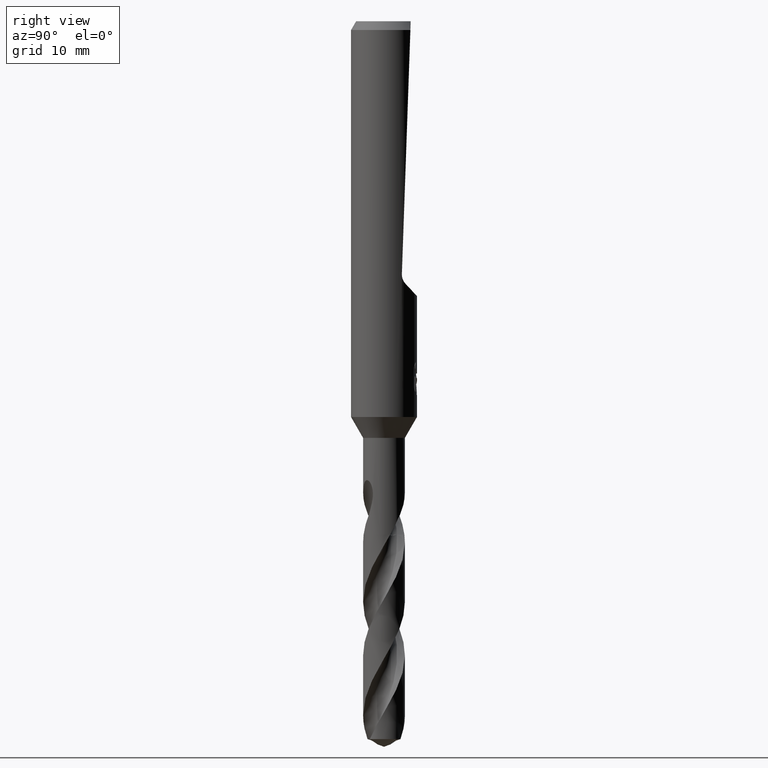
[diagram: clean part render]
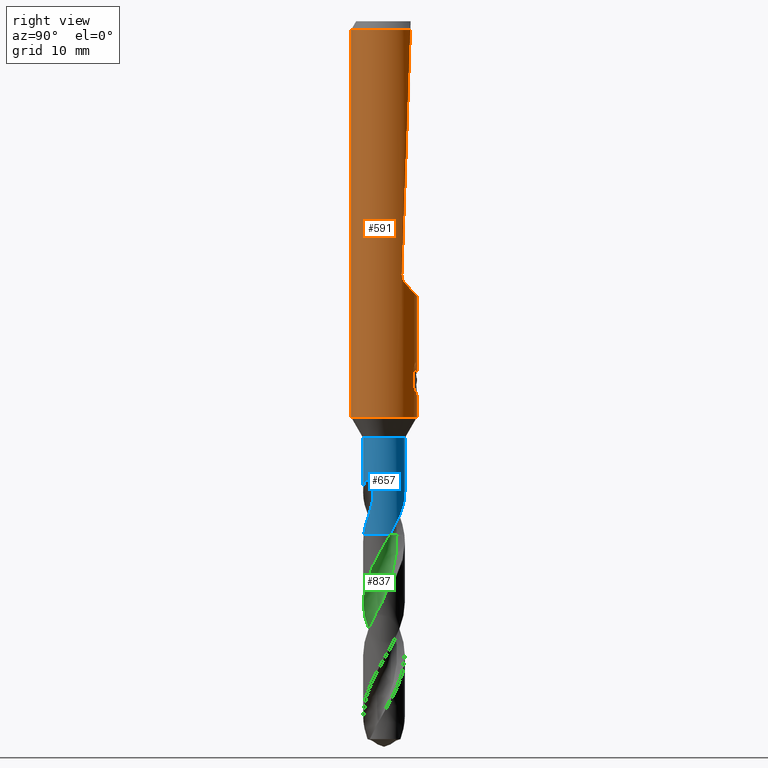
[diagram: same view with three faces highlighted in distinct colors, each labeled with its STEP entity id]
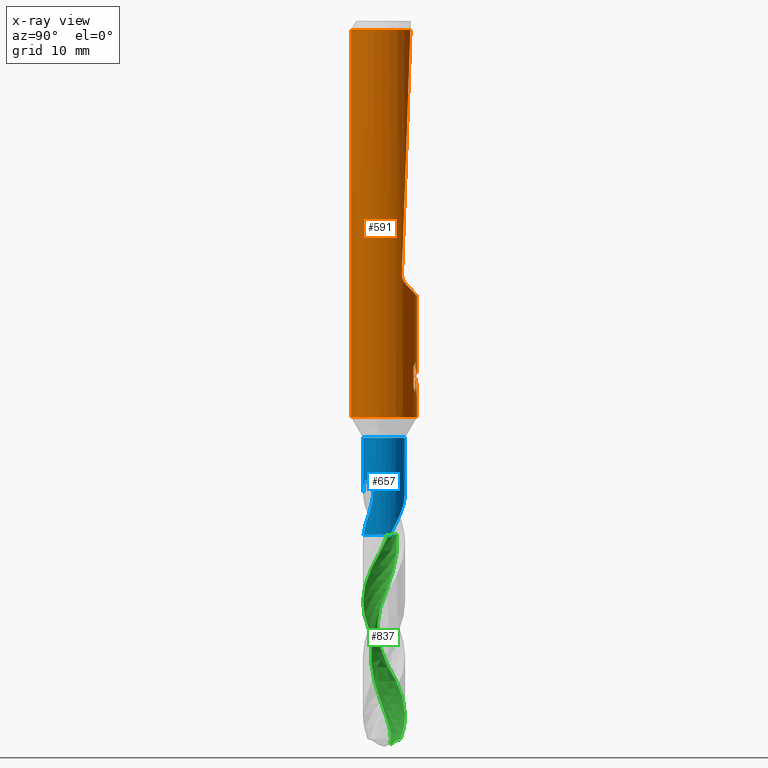
[diagram: x-ray of the same camera — body ghosted, the three highlighted faces saturated]
A machine part, right view with three faces highlighted in distinct colors.
The next image is the same camera in x-ray (body ghosted, the three faces saturated) — at least one of them is partly hidden behind the body in this view.
Their STEP definitions:

[orange] entity #591 — the highlighted cylindrical surface (edge-blend (fillet) strip) has radius 3 mm, axis along (-0, -0, 1).
#329=VERTEX_POINT('',#902);
#333=EDGE_CURVE('',#519,#759,#906,.T.);
#357=VERTEX_POINT('',#933);
#375=EDGE_CURVE('',#435,#743,#952,.T.);
#393=VERTEX_POINT('',#973);
#397=VERTEX_POINT('',#978);
#435=VERTEX_POINT('',#1021);
#445=EDGE_CURVE('',#357,#519,#1032,.T.);
#461=VERTEX_POINT('',#1048);
#467=VERTEX_POINT('',#1054);
#519=VERTEX_POINT('',#1110);
#541=VERTEX_POINT('',#1134);
#553=EDGE_CURVE('',#783,#357,#1146,.T.);
#591=ADVANCED_FACE('',(#1187),#1188,.T.);
#615=EDGE_CURVE('',#329,#541,#1213,.T.);
#663=EDGE_CURVE('',#467,#845,#1268,.T.);
#691=VERTEX_POINT('',#1297);
#701=VERTEX_POINT('',#1308);
#715=EDGE_CURVE('',#759,#701,#1324,.T.);
#717=EDGE_CURVE('',#541,#691,#1326,.T.);
#721=EDGE_CURVE('',#845,#435,#1330,.T.);
#729=EDGE_CURVE('',#397,#701,#1338,.T.);
#731=EDGE_CURVE('',#461,#743,#1340,.T.);
#737=EDGE_CURVE('',#329,#393,#1347,.T.);
#739=EDGE_CURVE('',#397,#467,#1349,.T.);
#743=VERTEX_POINT('',#1353);
#759=VERTEX_POINT('',#1372);
#783=VERTEX_POINT('',#1398);
#793=EDGE_CURVE('',#691,#783,#1408,.T.);
#833=EDGE_CURVE('',#393,#461,#1451,.T.);
#845=VERTEX_POINT('',#1465);
#902=CARTESIAN_POINT('',(-2.46407913303377E-016,3.0,-34.0310253601033));
#906=B_SPLINE_CURVE_WITH_KNOTS('',3,(#1809,#1810,#1811,#1812,#1813,#1814,#1815,#1816),.UNSPECIFIED.,.F.,.F.,(4,2,2,4),(0.629580638580865,1.25916127716173,1.57221094126725,1.88526060537277),.UNSPECIFIED.);
#933=CARTESIAN_POINT('',(1.33721006514658,2.68549236485056,-33.2901657003257));
#952=CIRCLE('',#1929,3.0);
#973=CARTESIAN_POINT('',(0.0,3.0,-36.0));
#978=CARTESIAN_POINT('',(-3.67381906146713E-016,3.0,-25.0009117563346));
#1021=CARTESIAN_POINT('',(1.79915003951659,2.40063723525806,-0.799999999999997));
#1032=LINE('',#2803,#2804);
#1048=CARTESIAN_POINT('',(3.67381906146713E-016,-3.0,-36.0));
#1054=CARTESIAN_POINT('',(2.2826599132014,1.94665449442457,-23.8713369953104));
#1110=CARTESIAN_POINT('',(1.33721006514658,2.68549236485057,-31.5150484364821));
#1134=CARTESIAN_POINT('',(0.29010312703583,2.98594041730307,-33.9998328990228));
#1146=B_SPLINE_CURVE_WITH_KNOTS('',3,(#4122,#4123,#4124,#4125,#4126,#4127,#4128,#4129),.UNSPECIFIED.,.F.,.F.,(4,2,2,4),(8.17446522132897,8.48751487521068,8.80056452909238,9.43014514523744),.UNSPECIFIED.);
#1187=FACE_OUTER_BOUND('',#4336,.T.);
#1188=CYLINDRICAL_SURFACE('',#4337,3.0);
#1213=B_SPLINE_CURVE_WITH_KNOTS('',3,(#4980,#4981,#4982,#4983,#4984,#4985,#4986,#4987,#4988,#4989,#4990,#4991,#4992,#4993,#4994,#4995),.UNSPECIFIED.,.F.,.F.,(4,2,2,2,2,2,2,4),(5.66023402257373,6.29060333517104,6.60504483258975,6.91948633000846,7.23392782742717,7.54836932484587,7.86141901111221,8.17446869737855),.UNSPECIFIED.);
#1268=B_SPLINE_CURVE_WITH_KNOTS('',3,(#5467,#5468,#5469,#5470,#5471,#5472,#5473,#5474,#5475,#5476,#5477,#5478),.UNSPECIFIED.,.F.,.F.,(4,2,2,2,2,4),(9.65639576015631,9.92366870863066,10.190941657105,10.4582146055794,10.7254875540537,10.9927605025281),.UNSPECIFIED.);
#1297=CARTESIAN_POINT('',(0.873560781758957,2.86999852971612,-32.3198931596091));
#1308=CARTESIAN_POINT('',(-1.20768269592175E-015,3.0,-32.0232688117743));
#1324=B_SPLINE_CURVE_WITH_KNOTS('',3,(#7050,#7051,#7052,#7053,#7054,#7055,#7056,#7057,#7058,#7059,#7060,#7061,#7062,#7063,#7064,#7065,#7066,#7067,#7068,#7069,#7070,#7071,#7072,#7073,#7074,#7075,#7076),.UNSPECIFIED.,.F.,.F.,(4,2,3,2,2,2,2,2,2,2,2,2,4),(-0.54422824842136,-0.27211412421068,0.0,0.272114124210678,0.544228248421357,0.817906359646673,1.09158447087199,1.36255924571499,1.63353402055798,1.90530456554772,2.17707511053746,2.4488456555272,2.72061620051693),.UNSPECIFIED.);
#1326=ELLIPSE('',#7079,9.14398372010932,3.0);
#1330=ELLIPSE('',#7084,85.9611250435315,3.0);
#1338=LINE('',#7163,#7164);
#1340=LINE('',#7167,#7168);
#1347=LINE('',#7177,#7178);
#1349=ELLIPSE('',#7181,4.39883755691887,3.0);
#1353=CARTESIAN_POINT('',(3.67381906146713E-016,-3.0,-0.799999999999997));
#1372=CARTESIAN_POINT('',(0.799431726384364,2.89152363207533,-31.000000276873));
#1398=CARTESIAN_POINT('',(0.873560781758956,2.86999852971612,-33.7587351791531));
#1408=LINE('',#7887,#7888);
#1451=CIRCLE('',#8119,3.0);
#1465=CARTESIAN_POINT('',(2.52177371746177,1.62500994394466,-23.0110595671924));
#1809=CARTESIAN_POINT('',(1.47371594887933,2.61307506628086,-31.7730763684241));
#1810=CARTESIAN_POINT('',(1.38997410067862,2.66030349611674,-31.5732652606136));
#1811=CARTESIAN_POINT('',(1.2654392594963,2.72440179761724,-31.3929794688919));
#1812=CARTESIAN_POINT('',(1.05168354029617,2.81066216411606,-31.1794481382038));
#1813=CARTESIAN_POINT('',(0.971352579549231,2.83988055521709,-31.1125077441098));
#1814=CARTESIAN_POINT('',(0.795685568183073,2.89401656493242,-30.9938021282019));
#1815=CARTESIAN_POINT('',(0.700343019183212,2.91889351702519,-30.9420279807093));
#1816=CARTESIAN_POINT('',(0.600330681290245,2.93932017192779,-30.9001776926585));
#1929=AXIS2_PLACEMENT_3D('',#8855,#8856,#8857);
#2803=CARTESIAN_POINT('',(1.33721006514658,2.68549236485056,-32.4026070684039));
#2804=VECTOR('',#8960,1.0);
#4122=CARTESIAN_POINT('',(0.600330703923335,2.93932016730517,-33.9050364278969));
#4123=CARTESIAN_POINT('',(0.700343038443484,2.91889351228921,-33.8631861412044));
#4124=CARTESIAN_POINT('',(0.795685584213131,2.8940165604303,-33.8114119954011));
#4125=CARTESIAN_POINT('',(0.971352589628262,2.83988055167306,-33.692706383359));
#4126=CARTESIAN_POINT('',(1.0516835476539,2.81066216129401,-33.6257659914415));
#4127=CARTESIAN_POINT('',(1.26543925920527,2.72440179743877,-33.4122346680481));
#4128=CARTESIAN_POINT('',(1.3899740959159,2.66030349847411,-33.2319488826214));
#4129=CARTESIAN_POINT('',(1.47371594109741,2.61307507066968,-33.0321377817991));
#4336=EDGE_LOOP('',(#9074,#9075,#9076,#9077,#9078,#9079,#9080,#9081,#9082,#9083,#9084,#9085,#9086,#9087,#9088));
#4337=AXIS2_PLACEMENT_3D('',#9089,#9090,#9091);
#4980=CARTESIAN_POINT('',(-1.53050642192579,2.58022287650581,-33.0319811255889));
#4981=CARTESIAN_POINT('',(-1.44691631248335,2.62980577312329,-33.2314887010961));
#4982=CARTESIAN_POINT('',(-1.32276760444366,2.69707077181617,-33.4113258593841));
#4983=CARTESIAN_POINT('',(-1.10973155101076,2.78826898930335,-33.6245951706909));
#4984=CARTESIAN_POINT('',(-1.02948996220254,2.81934349084513,-33.6916117853674));
#4985=CARTESIAN_POINT('',(-0.853932698223484,2.87738531454781,-33.8105216600777));
#4986=CARTESIAN_POINT('',(-0.758609991487907,2.90431263574779,-33.8624240602539));
#4987=CARTESIAN_POINT('',(-0.558469552260235,2.94934446690523,-33.9464055954533));
#4988=CARTESIAN_POINT('',(-0.453457041446381,2.96746268462387,-33.9785511641911));
#4989=CARTESIAN_POINT('',(-0.240810292537893,2.99223469602914,-34.0209924679526));
#4990=CARTESIAN_POINT('',(-0.133171317626829,2.99887501234033,-34.0312723335086));
#4991=CARTESIAN_POINT('',(0.0759830626177195,3.00085245803086,-34.0312723335086));
#4992=CARTESIAN_POINT('',(0.183273473896684,2.99629272230549,-34.0210815541729));
#4993=CARTESIAN_POINT('',(0.39543915272815,2.97573303917486,-33.9788816901513));
#4994=CARTESIAN_POINT('',(0.500318639064909,2.95974677710468,-33.9468871509919));
#4995=CARTESIAN_POINT('',(0.600330982089903,2.93932011049205,-33.9050368602192));
#5467=CARTESIAN_POINT('',(2.1993251643641,2.0403354678569,-23.961472197729));
#5468=CARTESIAN_POINT('',(2.25053184097059,1.98513859743127,-23.9138446323197));
#5469=CARTESIAN_POINT('',(2.29788287508865,1.92976722949031,-23.8571075060433));
#5470=CARTESIAN_POINT('',(2.37970549766852,1.82791383934016,-23.7268045582116));
#5471=CARTESIAN_POINT('',(2.41423408090567,1.78148417509052,-23.6532336111416));
#5472=CARTESIAN_POINT('',(2.46888600291622,1.7049378084188,-23.4943584779312));
#5473=CARTESIAN_POINT('',(2.48916425834033,1.67470764776135,-23.408819725842));
#5474=CARTESIAN_POINT('',(2.51582947593657,1.63437647323784,-23.2326537242643));
#5475=CARTESIAN_POINT('',(2.52224462272648,1.62427893636757,-23.1420299460602));
#5476=CARTESIAN_POINT('',(2.52224462272648,1.62427893636757,-22.9638479804106));
#5477=CARTESIAN_POINT('',(2.51582947593657,1.63437647323784,-22.8732242022064));
#5478=CARTESIAN_POINT('',(2.50249686713845,1.65454206049959,-22.7851412014176));
#7050=CARTESIAN_POINT('',(0.665621182276714,2.92522622060321,-30.8140957881762));
#7051=CARTESIAN_POINT('',(0.728850563417096,2.91083867849353,-30.877518087557));
#7052=CARTESIAN_POINT('',(0.783900459387161,2.89602337967411,-30.9578702196133));
#7053=CARTESIAN_POINT('',(0.857188692916628,2.87518328740958,-31.1345580124299));
#7054=CARTESIAN_POINT('',(0.875400981188567,2.86943777108584,-31.2309373045166));
#7055=CARTESIAN_POINT('',(0.875400981188567,2.86943777108584,-31.3216420125868));
#7056=CARTESIAN_POINT('',(0.875400981188567,2.86943777108584,-31.412346720657));
#7057=CARTESIAN_POINT('',(0.857188692916629,2.87518328740958,-31.5087260127437));
#7058=CARTESIAN_POINT('',(0.783900459387161,2.89602337967411,-31.6854138055602));
#7059=CARTESIAN_POINT('',(0.728850563417096,2.91083867849353,-31.7657659376165));
#7060=CARTESIAN_POINT('',(0.60202838769231,2.93969645569731,-31.8929750586276));
#7061=CARTESIAN_POINT('',(0.5214778595293,2.95568533572518,-31.9483797636259));
#7062=CARTESIAN_POINT('',(0.34429909105015,2.98152194310932,-32.0221641076746));
#7063=CARTESIAN_POINT('',(0.247628172090375,2.99115403786358,-32.0405166027747));
#7064=CARTESIAN_POINT('',(0.0663244946631877,3.00062654348629,-32.0405166027747));
#7065=CARTESIAN_POINT('',(-0.0299285908853379,3.00115720326599,-32.0224875186921));
#7066=CARTESIAN_POINT('',(-0.206881310600538,2.99416773126077,-31.949244373347));
#7067=CARTESIAN_POINT('',(-0.287593937381961,2.98687212067831,-31.8940404490632));
#7068=CARTESIAN_POINT('',(-0.415200117492864,2.97182576996222,-31.7666805419979));
#7069=CARTESIAN_POINT('',(-0.470604049431396,2.96309385107775,-31.6859121102136));
#7070=CARTESIAN_POINT('',(-0.544183869965539,2.95046729924835,-31.5086992019516));
#7071=CARTESIAN_POINT('',(-0.562348199187247,2.94682278104247,-31.41223219425));
#7072=CARTESIAN_POINT('',(-0.562348199187247,2.94682278104247,-31.2310518309235));
#7073=CARTESIAN_POINT('',(-0.54418386996554,2.95046729924835,-31.134584823222));
#7074=CARTESIAN_POINT('',(-0.4706040494314,2.96309385107775,-30.95737191496));
#7075=CARTESIAN_POINT('',(-0.415200117492863,2.97182576996222,-30.8766034831756));
#7076=CARTESIAN_POINT('',(-0.351303479704285,2.97935997575782,-30.812830162452));
#7079=AXIS2_PLACEMENT_3D('',#9202,#9203,#9204);
#7084=AXIS2_PLACEMENT_3D('',#9205,#9206,#9207);
#7163=CARTESIAN_POINT('',(-3.67381906146713E-016,3.0,-18.4));
#7164=VECTOR('',#9208,1.0);
#7167=CARTESIAN_POINT('',(3.67381906146713E-016,-3.0,-18.4));
#7168=VECTOR('',#9209,1.0);
#7177=CARTESIAN_POINT('',(-3.67381906146713E-016,3.0,-18.4));
#7178=VECTOR('',#9223,1.0);
#7181=AXIS2_PLACEMENT_3D('',#9224,#9225,#9226);
#7887=CARTESIAN_POINT('',(0.873560781758957,2.86999852971612,-33.0393141693811));
#7888=VECTOR('',#9282,1.0);
#8119=AXIS2_PLACEMENT_3D('',#9321,#9322,#9323);
#8855=CARTESIAN_POINT('',(0.0,0.0,-0.799999999999997));
#8856=DIRECTION('',(0.0,0.0,-1.0));
#8857=DIRECTION('',(0.0,1.0,0.0));
#8960=DIRECTION('',(-0.0,-0.0,1.0));
#9074=ORIENTED_EDGE('',*,*,#729,.F.);
#9075=ORIENTED_EDGE('',*,*,#739,.T.);
#9076=ORIENTED_EDGE('',*,*,#663,.T.);
#9077=ORIENTED_EDGE('',*,*,#721,.T.);
#9078=ORIENTED_EDGE('',*,*,#375,.T.);
#9079=ORIENTED_EDGE('',*,*,#731,.F.);
#9080=ORIENTED_EDGE('',*,*,#833,.F.);
#9081=ORIENTED_EDGE('',*,*,#737,.F.);
#9082=ORIENTED_EDGE('',*,*,#615,.T.);
#9083=ORIENTED_EDGE('',*,*,#717,.T.);
#9084=ORIENTED_EDGE('',*,*,#793,.T.);
#9085=ORIENTED_EDGE('',*,*,#553,.T.);
#9086=ORIENTED_EDGE('',*,*,#445,.T.);
#9087=ORIENTED_EDGE('',*,*,#333,.T.);
#9088=ORIENTED_EDGE('',*,*,#715,.T.);
#9089=CARTESIAN_POINT('',(0.0,0.0,-18.4));
#9090=DIRECTION('',(-0.0,-0.0,1.0));
#9091=DIRECTION('',(0.0,1.0,0.0));
#9202=CARTESIAN_POINT('',(0.0,0.0,-34.8351219173269));
#9203=DIRECTION('',(0.944648353914092,0.0,-0.328084573619969));
#9204=DIRECTION('',(0.328084573619969,-0.0,0.944648353914092));
#9205=CARTESIAN_POINT('',(0.0,0.0,-69.5452559092481));
#9206=DIRECTION('',(0.0,-0.999390827019096,0.0348994967025009));
#9207=DIRECTION('',(0.0,0.0348994967025009,0.999390827019096));
#9208=DIRECTION('',(0.0,0.0,-1.0));
#9209=DIRECTION('',(-0.0,-0.0,1.0));
#9223=DIRECTION('',(0.0,0.0,-1.0));
#9224=CARTESIAN_POINT('',(0.0,0.0,-21.7838056262606));
#9225=DIRECTION('',(0.0,-0.731353701619171,-0.681998360062499));
#9226=DIRECTION('',(0.0,0.681998360062499,-0.731353701619171));
#9282=DIRECTION('',(0.0,0.0,-1.0));
#9321=CARTESIAN_POINT('',(0.0,0.0,-36.0));
#9322=DIRECTION('',(0.0,0.0,-1.0));
#9323=DIRECTION('',(0.0,1.0,0.0));

[blue] entity #657 — the highlighted cylindrical surface (edge-blend (fillet) strip) has radius 1.9 mm, axis along (-0, -0, 1).
#373=VERTEX_POINT('',#950);
#439=VERTEX_POINT('',#1025);
#449=EDGE_CURVE('',#439,#769,#1036,.T.);
#451=EDGE_CURVE('',#813,#439,#1038,.T.);
#489=VERTEX_POINT('',#1078);
#493=VERTEX_POINT('',#1082);
#535=VERTEX_POINT('',#1127);
#547=EDGE_CURVE('',#373,#489,#1140,.T.);
#569=EDGE_CURVE('',#493,#601,#1164,.T.);
#601=VERTEX_POINT('',#1199);
#605=EDGE_CURVE('',#373,#535,#1203,.T.);
#651=EDGE_CURVE('',#853,#813,#1254,.T.);
#657=ADVANCED_FACE('',(#1260),#1261,.T.);
#671=EDGE_CURVE('',#853,#489,#1276,.T.);
#673=EDGE_CURVE('',#601,#535,#1278,.T.);
#765=EDGE_CURVE('',#493,#769,#1378,.T.);
#769=VERTEX_POINT('',#1382);
#813=VERTEX_POINT('',#1430);
#853=VERTEX_POINT('',#1474);
#950=CARTESIAN_POINT('',(0.0,1.9,-37.9052558883258));
#1025=CARTESIAN_POINT('',(1.32064695167188,-1.36597643795191,-44.8778));
#1036=B_SPLINE_CURVE_WITH_KNOTS('',3,(#2837,#2838,#2839,#2840,#2841,#2842,#2843,#2844),.UNSPECIFIED.,.F.,.F.,(4,2,2,4),(0.0,0.576250311160817,1.11259471561822,1.997420074431),.UNSPECIFIED.);
#1038=B_SPLINE_CURVE_WITH_KNOTS('',3,(#2847,#2848,#2849,#2850),.UNSPECIFIED.,.F.,.F.,(4,4),(0.0,1.09196780730607),.UNSPECIFIED.);
#1078=CARTESIAN_POINT('',(2.32675207226252E-016,-1.9,-37.9052558883258));
#1082=CARTESIAN_POINT('',(1.81578660910849,0.559391625055555,-46.7));
#1127=CARTESIAN_POINT('',(-5.67662347791993E-013,1.9,-42.8581361608634));
#1140=CIRCLE('',#3998,1.9);
#1164=B_SPLINE_CURVE_WITH_KNOTS('',3,(#4204,#4205,#4206,#4207,#4208,#4209,#4210,#4211),.UNSPECIFIED.,.F.,.F.,(4,2,2,4),(0.0,1.04883340318962,1.93251209663222,3.8840132338963),.UNSPECIFIED.);
#1199=CARTESIAN_POINT('',(1.21071203354284,1.46430064257124,-44.8778));
#1203=LINE('',#4964,#4965);
#1254=B_SPLINE_CURVE_WITH_KNOTS('',3,(#5402,#5403,#5404,#5405,#5406,#5407,#5408,#5409,#5410,#5411,#5412,#5413,#5414,#5415,#5416,#5417,#5418,#5419,#5420,#5421,#5422,#5423,#5424,#5425,#5426,#5427,#5428,#5429),.UNSPECIFIED.,.F.,.F.,(4,2,2,2,2,2,2,2,2,2,2,2,2,4),(0.0,0.930896725868807,1.43918709684327,1.89957042393617,2.43442537099132,3.07690815496931,3.63375908794895,3.88610448691807,4.07053822624275,4.24506649053845,4.46646600120742,4.79038246894408,5.25086781089674,5.77450983232069),.UNSPECIFIED.);
#1260=FACE_OUTER_BOUND('',#5457,.T.);
#1261=CYLINDRICAL_SURFACE('',#5458,1.9);
#1276=LINE('',#5522,#5523);
#1278=B_SPLINE_CURVE_WITH_KNOTS('',3,(#5526,#5527,#5528,#5529,#5530,#5531,#5532,#5533,#5534,#5535,#5536,#5537,#5538,#5539,#5540,#5541,#5542,#5543,#5544,#5545,#5546,#5547,#5548,#5549,#5550,#5551,#5552,#5553),.UNSPECIFIED.,.F.,.F.,(4,2,2,2,2,2,2,2,2,2,2,2,2,4),(0.0,0.930896725868812,1.43918709684323,1.8995704239361,2.43442537099121,3.07690815496917,3.63375908794876,3.88610448691797,4.07053822624273,4.2450664905385,4.46646600120753,4.79038246894432,5.25086781089762,5.77450983232257),.UNSPECIFIED.);
#1378=CIRCLE('',#7490,1.9);
#1382=CARTESIAN_POINT('',(0.404768178308106,-1.85638431415188,-46.7));
#1430=CARTESIAN_POINT('',(1.54592011029632,-1.10459540673561,-43.8373975703887));
#1474=CARTESIAN_POINT('',(5.59779764317155E-013,-1.9,-42.8581361608634));
#2837=CARTESIAN_POINT('',(1.32064695167187,-1.36597643795191,-44.8778));
#2838=CARTESIAN_POINT('',(1.25493842143284,-1.42950445186782,-45.0467456341314));
#2839=CARTESIAN_POINT('',(1.18503475801914,-1.48845189755056,-45.2085796782652));
#2840=CARTESIAN_POINT('',(1.02954118812307,-1.59954103631005,-45.5310189482785));
#2841=CARTESIAN_POINT('',(0.949746548014197,-1.64849777113106,-45.6880399521698));
#2842=CARTESIAN_POINT('',(0.718867094263392,-1.76614214257636,-46.1369260024279));
#2843=CARTESIAN_POINT('',(0.564209388473792,-1.82161956867648,-46.4186737246564));
#2844=CARTESIAN_POINT('',(0.404768178308115,-1.85638431415187,-46.7));
#2847=CARTESIAN_POINT('',(1.54592011034894,-1.10459540666197,-43.8373975704177));
#2848=CARTESIAN_POINT('',(1.48466567652095,-1.19032314057397,-44.1858037098529));
#2849=CARTESIAN_POINT('',(1.41083771128062,-1.27877862952934,-44.5362831998041));
#2850=CARTESIAN_POINT('',(1.32064695167187,-1.36597643795191,-44.8778));
#3998=AXIS2_PLACEMENT_3D('',#9033,#9034,#9035);
#4204=CARTESIAN_POINT('',(1.81578660910851,0.559391625055544,-46.7));
#4205=CARTESIAN_POINT('',(1.76425769163538,0.726654619599414,-46.397352008739));
#4206=CARTESIAN_POINT('',(1.6966254113087,0.866195850401933,-46.1465398238148));
#4207=CARTESIAN_POINT('',(1.56572391480033,1.08253292619974,-45.700038890581));
#4208=CARTESIAN_POINT('',(1.5142755115886,1.14871006699163,-45.5301510812298));
#4209=CARTESIAN_POINT('',(1.41265315152819,1.27550819809439,-45.2347977527772));
#4210=CARTESIAN_POINT('',(1.3254430201167,1.36943884846502,-45.0528753160362));
#4211=CARTESIAN_POINT('',(1.21071203354284,1.46430064257124,-44.8778));
#4964=CARTESIAN_POINT('',(-2.32675207226252E-016,1.9,-42.3026279441629));
#4965=VECTOR('',#9101,1.0);
#5402=CARTESIAN_POINT('',(-1.21071203354284,-1.46430064257124,-44.8778));
#5403=CARTESIAN_POINT('',(-1.08538087330129,-1.56792686485841,-44.6135290802612));
#5404=CARTESIAN_POINT('',(-0.941278308818904,-1.66004339814314,-44.36714351895));
#5405=CARTESIAN_POINT('',(-0.690006337884158,-1.77295146389738,-43.9555394209279));
#5406=CARTESIAN_POINT('',(-0.599587009473507,-1.80543079791102,-43.810723447385));
#5407=CARTESIAN_POINT('',(-0.424546600169902,-1.85397230287446,-43.5303971486895));
#5408=CARTESIAN_POINT('',(-0.340707086095919,-1.87112190445772,-43.3961934997419));
#5409=CARTESIAN_POINT('',(-0.159229834318965,-1.89587303984936,-43.1069488917868));
#5410=CARTESIAN_POINT('',(-0.0600762303288743,-1.90168393949035,-42.9496438769895));
#5411=CARTESIAN_POINT('',(0.160118456058105,-1.89705228779978,-42.6131166077026));
#5412=CARTESIAN_POINT('',(0.290671617676792,-1.88272651539859,-42.421628927856));
#5413=CARTESIAN_POINT('',(0.542426530797424,-1.82487212056621,-42.1058789172795));
#5414=CARTESIAN_POINT('',(0.681712501963189,-1.78079434988088,-41.951805206737));
#5415=CARTESIAN_POINT('',(0.892520378424017,-1.67890993681827,-41.8075307994537));
#5416=CARTESIAN_POINT('',(0.96229911801962,-1.64044626239386,-41.7718748476525));
#5417=CARTESIAN_POINT('',(1.08456752146185,-1.56124860066155,-41.7444846669143));
#5418=CARTESIAN_POINT('',(1.13471666348301,-1.5251813870785,-41.7439732162605));
#5419=CARTESIAN_POINT('',(1.22812215179518,-1.45089044992675,-41.767945289558));
#5420=CARTESIAN_POINT('',(1.26897305300971,-1.41500940735062,-41.7904212478785));
#5421=CARTESIAN_POINT('',(1.35210418437972,-1.33637889976646,-41.8607459460686));
#5422=CARTESIAN_POINT('',(1.39056440872162,-1.29563059277343,-41.9126680904723));
#5423=CARTESIAN_POINT('',(1.46934338524981,-1.20665367368141,-42.054847054154));
#5424=CARTESIAN_POINT('',(1.50699816538277,-1.15819937106817,-42.1603018334784));
#5425=CARTESIAN_POINT('',(1.57780658952891,-1.06090372748162,-42.4553525677251));
#5426=CARTESIAN_POINT('',(1.60340547576235,-1.01946044813557,-42.6654837368289));
#5427=CARTESIAN_POINT('',(1.61977323562939,-0.993279704172424,-43.1678680838826));
#5428=CARTESIAN_POINT('',(1.60817560749202,-1.01746664945085,-43.4833068082755));
#5429=CARTESIAN_POINT('',(1.54592011029632,-1.10459540673561,-43.8373975703887));
#5457=EDGE_LOOP('',(#9143,#9144,#9145,#9146,#9147,#9148,#9149,#9150,#9151));
#5458=AXIS2_PLACEMENT_3D('',#9152,#9153,#9154);
#5522=CARTESIAN_POINT('',(2.32675207226252E-016,-1.9,-42.3026279441629));
#5523=VECTOR('',#9171,1.0);
#5526=CARTESIAN_POINT('',(1.21071203354284,1.46430064257124,-44.8778));
#5527=CARTESIAN_POINT('',(1.08538087330129,1.56792686485841,-44.6135290802612));
#5528=CARTESIAN_POINT('',(0.941278308818906,1.66004339814314,-44.36714351895));
#5529=CARTESIAN_POINT('',(0.690006337884163,1.77295146389738,-43.9555394209279));
#5530=CARTESIAN_POINT('',(0.59958700947352,1.80543079791102,-43.810723447385));
#5531=CARTESIAN_POINT('',(0.424546600169888,1.85397230287446,-43.5303971486895));
#5532=CARTESIAN_POINT('',(0.340707086095889,1.87112190445773,-43.3961934997418));
#5533=CARTESIAN_POINT('',(0.159229834318997,1.89587303984936,-43.1069488917869));
#5534=CARTESIAN_POINT('',(0.0600762303288924,1.90168393949035,-42.9496438769896));
#5535=CARTESIAN_POINT('',(-0.160118456058132,1.89705228779978,-42.6131166077025));
#5536=CARTESIAN_POINT('',(-0.290671617676801,1.88272651539859,-42.421628927856));
#5537=CARTESIAN_POINT('',(-0.542426530797416,1.82487212056622,-42.1058789172795));
#5538=CARTESIAN_POINT('',(-0.681712501963187,1.78079434988088,-41.951805206737));
#5539=CARTESIAN_POINT('',(-0.892520378424043,1.67890993681826,-41.8075307994537));
#5540=CARTESIAN_POINT('',(-0.962299118019629,1.64044626239386,-41.7718748476525));
#5541=CARTESIAN_POINT('',(-1.08456752146185,1.56124860066155,-41.7444846669144));
#5542=CARTESIAN_POINT('',(-1.13471666348301,1.5251813870785,-41.7439732162605));
#5543=CARTESIAN_POINT('',(-1.22812215179518,1.45089044992675,-41.767945289558));
#5544=CARTESIAN_POINT('',(-1.26897305300971,1.41500940735062,-41.7904212478785));
#5545=CARTESIAN_POINT('',(-1.35210418437971,1.33637889976647,-41.8607459460686));
#5546=CARTESIAN_POINT('',(-1.3905644087216,1.29563059277345,-41.9126680904722));
#5547=CARTESIAN_POINT('',(-1.46934338524984,1.20665367368138,-42.0548470541541));
#5548=CARTESIAN_POINT('',(-1.50699816538279,1.15819937106815,-42.1603018334785));
#5549=CARTESIAN_POINT('',(-1.57780658952892,1.0609037274816,-42.4553525677252));
#5550=CARTESIAN_POINT('',(-1.60340547576235,1.01946044813557,-42.665483736829));
#5551=CARTESIAN_POINT('',(-1.61977323562939,0.993279704172423,-43.1678680838827));
#5552=CARTESIAN_POINT('',(-1.608175607492,1.01746664945087,-43.4833068082756));
#5553=CARTESIAN_POINT('',(-1.54592011029632,1.10459540673561,-43.8373975703887));
#7490=AXIS2_PLACEMENT_3D('',#9255,#9256,#9257);
#9033=CARTESIAN_POINT('',(0.0,0.0,-37.9052558883258));
#9034=DIRECTION('',(0.0,0.0,-1.0));
#9035=DIRECTION('',(0.0,1.0,0.0));
#9101=DIRECTION('',(0.0,0.0,-1.0));
#9143=ORIENTED_EDGE('',*,*,#605,.F.);
#9144=ORIENTED_EDGE('',*,*,#547,.T.);
#9145=ORIENTED_EDGE('',*,*,#671,.F.);
#9146=ORIENTED_EDGE('',*,*,#651,.T.);
#9147=ORIENTED_EDGE('',*,*,#451,.T.);
#9148=ORIENTED_EDGE('',*,*,#449,.T.);
#9149=ORIENTED_EDGE('',*,*,#765,.F.);
#9150=ORIENTED_EDGE('',*,*,#569,.T.);
#9151=ORIENTED_EDGE('',*,*,#673,.T.);
#9152=CARTESIAN_POINT('',(0.0,0.0,-42.3026279441629));
#9153=DIRECTION('',(-0.0,-0.0,1.0));
#9154=DIRECTION('',(0.0,1.0,0.0));
#9171=DIRECTION('',(-0.0,-0.0,1.0));
#9255=CARTESIAN_POINT('',(0.0,0.0,-46.7));
#9256=DIRECTION('',(0.0,0.0,-1.0));
#9257=DIRECTION('',(0.0,1.0,0.0));

[green] entity #837 — the highlighted face is a freeform B-spline surface patch.
#323=EDGE_CURVE('',#481,#727,#895,.T.);
#359=EDGE_CURVE('',#687,#719,#935,.T.);
#405=EDGE_CURVE('',#719,#767,#988,.T.);
#427=EDGE_CURVE('',#473,#481,#1012,.T.);
#473=VERTEX_POINT('',#1060);
#481=VERTEX_POINT('',#1069);
#525=EDGE_CURVE('',#727,#687,#1116,.T.);
#611=VERTEX_POINT('',#1209);
#645=EDGE_CURVE('',#611,#473,#1247,.T.);
#655=EDGE_CURVE('',#767,#611,#1258,.T.);
#687=VERTEX_POINT('',#1293);
#719=VERTEX_POINT('',#1328);
#727=VERTEX_POINT('',#1336);
#767=VERTEX_POINT('',#1380);
#837=ADVANCED_FACE('',(#1455),#1456,.F.);
#895=B_SPLINE_CURVE_WITH_KNOTS('',3,(#1512,#1513,#1514,#1515,#1516,#1517,#1518,#1519,#1520,#1521,#1522,#1523,#1524,#1525,#1526,#1527,#1528,#1529,#1530,#1531,#1532,#1533,#1534,#1535,#1536,#1537,#1538,#1539,#1540,#1541,#1542,#1543,#1544,#1545,#1546,#1547,#1548,#1549,#1550,#1551,#1552,#1553,#1554,#1555,#1556,#1557,#1558,#1559,#1560,#1561,#1562,#1563,#1564,#1565,#1566,#1567,#1568,#1569,#1570,#1571,#1572,#1573,#1574,#1575,#1576,#1577,#1578,#1579),.UNSPECIFIED.,.F.,.F.,(4,2,2,2,2,2,2,2,2,2,2,2,2,2,2,2,2,2,2,2,2,2,2,2,2,2,2,2,2,2,2,2,2,4),(0.0,1.14129969600738,1.71329585624154,2.09578422940093,2.47548582088106,3.23989044268919,3.60658261814615,3.96992016783177,4.99806030224604,5.72551068671464,6.45919813714169,7.18873276960834,7.92276273217605,8.68611648577975,9.42084349370082,10.1537962440789,10.8896957549911,11.2435258481878,11.8113029179076,12.9573117114744,13.0069675417887,13.7714492230559,14.1541989804738,14.9159493788203,15.6815883886105,16.4435970331416,17.5671730660579,17.6184504170581,18.3729846045129,18.7702283652263,19.4614990192565,20.5080180631718,21.030239145065,21.5514608121351),.UNSPECIFIED.);
#935=B_SPLINE_CURVE_WITH_KNOTS('',3,(#1882,#1883,#1884,#1885,#1886,#1887,#1888,#1889,#1890,#1891,#1892,#1893,#1894,#1895,#1896,#1897,#1898,#1899,#1900,#1901),.UNSPECIFIED.,.F.,.F.,(4,2,2,2,2,2,2,2,2,4),(-3.9901271750462,-3.7261246741145,-3.46206411517598,-2.96697920148485,-2.47196042875438,-1.97724558250136,-1.48289474108405,-0.988753075961483,-0.49453785556832,-0.0),.UNSPECIFIED.);
#988=B_SPLINE_CURVE_WITH_KNOTS('',3,(#1977,#1978,#1979,#1980,#1981,#1982,#1983,#1984,#1985,#1986,#1987,#1988,#1989,#1990,#1991,#1992,#1993,#1994,#1995,#1996,#1997,#1998,#1999,#2000,#2001,#2002,#2003,#2004,#2005,#2006,#2007,#2008,#2009,#2010,#2011,#2012,#2013,#2014,#2015,#2016,#2017,#2018,#2019,#2020,#2021,#2022,#2023,#2024,#2025,#2026,#2027,#2028,#2029),.UNSPECIFIED.,.F.,.F.,(4,1,2,2,2,2,1,2,1,2,1,2,1,2,1,2,1,2,1,2,1,2,1,2,1,2,1,2,1,2,1,2,1,4),(0.0,0.424788065878822,0.849576131757644,1.69915226351529,2.54872839527293,3.39830452703058,4.24788065878822,5.09745679054586,5.94703292230351,6.79660905406115,7.6461851858188,8.49576131757644,9.34533744933409,10.1949135810917,11.0444897128494,11.894065844607,12.7436419763647,13.5932181081223,14.44279423988,15.2923703716376,16.1419465033952,16.9915226351529,17.8410987669105,18.6906748986682,19.5402510304258,20.3898271621835,21.2394032939411,22.0889794256987,22.9385555574564,23.788131689214,24.6377078209717,25.4872839527293,26.336860084487,27.1864362162446),.UNSPECIFIED.);
#1012=B_SPLINE_CURVE_WITH_KNOTS('',3,(#2711,#2712,#2713,#2714,#2715,#2716,#2717,#2718,#2719,#2720,#2721,#2722,#2723,#2724,#2725,#2726,#2727,#2728,#2729,#2730,#2731,#2732,#2733,#2734,#2735,#2736,#2737,#2738,#2739,#2740,#2741,#2742,#2743,#2744,#2745,#2746,#2747,#2748,#2749,#2750,#2751,#2752,#2753,#2754,#2755,#2756,#2757,#2758,#2759,#2760,#2761,#2762,#2763,#2764,#2765,#2766,#2767,#2768,#2769,#2770,#2771,#2772,#2773,#2774,#2775,#2776,#2777,#2778),.UNSPECIFIED.,.F.,.F.,(4,2,2,2,2,2,2,2,2,2,2,2,2,2,2,2,2,2,2,2,2,2,2,2,2,2,2,2,2,2,2,2,2,4),(0.0,1.14129969600738,1.71329585624154,2.09578422940093,2.47548582088106,3.23989044268919,3.60658261814615,3.96992016783177,4.99806030224604,5.72551068671464,6.45919813714169,7.18873276960834,7.92276273217605,8.68611648577975,9.42084349370082,10.1537962440789,10.8896957549911,11.2435258481878,11.8113029179076,12.9573117114744,13.0069675417887,13.7714492230559,14.1541989804738,14.9159493788203,15.6815883886105,16.4435970331416,17.5671730660579,17.6184504170581,18.3729846045129,18.7702283652263,19.4614990192565,20.5080180631718,21.030239145065,21.5514608121351),.UNSPECIFIED.);
#1060=CARTESIAN_POINT('',(1.16765856255087,1.49885739191613,-65.3084565548942));
#1069=CARTESIAN_POINT('',(4.10244109276369E-015,1.89998832601995,-63.1361090506775));
#1116=B_SPLINE_CURVE_WITH_KNOTS('',3,(#3891,#3892,#3893,#3894,#3895,#3896,#3897,#3898,#3899,#3900,#3901,#3902,#3903,#3904,#3905,#3906,#3907,#3908,#3909,#3910,#3911,#3912,#3913,#3914,#3915,#3916,#3917,#3918,#3919,#3920,#3921,#3922,#3923,#3924,#3925,#3926,#3927,#3928,#3929,#3930,#3931,#3932,#3933,#3934,#3935,#3936,#3937,#3938,#3939,#3940,#3941,#3942,#3943,#3944,#3945,#3946,#3947,#3948,#3949,#3950,#3951,#3952,#3953,#3954,#3955,#3956,#3957,#3958),.UNSPECIFIED.,.F.,.F.,(4,2,2,2,2,2,2,2,2,2,2,2,2,2,2,2,2,2,2,2,2,2,2,2,2,2,2,2,2,2,2,2,2,4),(0.0,1.14129969600738,1.71329585624154,2.09578422940093,2.47548582088106,3.23989044268919,3.60658261814615,3.96992016783177,4.99806030224604,5.72551068671464,6.45919813714169,7.18873276960834,7.92276273217605,8.68611648577975,9.42084349370082,10.1537962440789,10.8896957549911,11.2435258481878,11.8113029179076,12.9573117114744,13.0069675417887,13.7714492230559,14.1541989804738,14.9159493788203,15.6815883886105,16.4435970331416,17.5671730660579,17.6184504170581,18.3729846045129,18.7702283652263,19.4614990192565,20.5080180631718,21.030239145065,21.5514608121351),.UNSPECIFIED.);
#1209=CARTESIAN_POINT('',(-4.11077887679526E-010,0.577587721321878,-65.7897752617612));
#1247=B_SPLINE_CURVE_WITH_KNOTS('',3,(#5372,#5373,#5374,#5375,#5376,#5377,#5378,#5379,#5380,#5381,#5382,#5383,#5384,#5385,#5386,#5387,#5388,#5389,#5390,#5391,#5392,#5393),.UNSPECIFIED.,.F.,.F.,(4,2,2,2,2,2,2,2,2,2,4),(0.0,0.599433697591738,1.40935372037054,2.82374587006451,4.9946284216351,6.50386250624511,8.05603157170227,10.8520091251086,13.9806121013394,15.9167350482161,17.8524527300229),.UNSPECIFIED.);
#1258=B_SPLINE_CURVE_WITH_KNOTS('',3,(#5434,#5435,#5436,#5437,#5438,#5439,#5440,#5441,#5442,#5443,#5444,#5445,#5446,#5447,#5448,#5449,#5450,#5451,#5452,#5453,#5454,#5455),.UNSPECIFIED.,.F.,.F.,(4,2,2,2,2,2,2,2,2,2,4),(0.0,0.599433697591738,1.40935372037054,2.82374587006451,4.9946284216351,6.50386250624511,8.05603157170227,10.8520091251086,13.9806121013394,15.9167350482161,17.8524527300229),.UNSPECIFIED.);
#1293=CARTESIAN_POINT('',(1.8165521907024,0.556559301070723,-46.705));
#1328=CARTESIAN_POINT('',(-0.201795252194495,1.17621022576391,-46.7050000000001));
#1336=CARTESIAN_POINT('',(-3.08796907900792E-012,-1.8999329635738,-52.8340123095757));
#1380=CARTESIAN_POINT('',(-0.773120791724195,0.9111871420329,-65.5650627632593));
#1455=FACE_OUTER_BOUND('',#8139,.T.);
#1456=B_SPLINE_SURFACE_WITH_KNOTS('',3,3,((#8140,#8141,#8142,#8143,#8144,#8145,#8146,#8147,#8148,#8149,#8150,#8151,#8152,#8153,#8154,#8155,#8156,#8157,#8158,#8159,#8160,#8161,#8162,#8163,#8164,#8165,#8166,#8167,#8168,#8169,#8170,#8171,#8172,#8173,#8174,#8175,#8176,#8177,#8178,#8179,#8180,#8181,#8182,#8183,#8184,#8185,#8186,#8187,#8188,#8189,#8190,#8191,#8192),(#8193,#8194,#8195,#8196,#8197,#8198,#8199,#8200,#8201,#8202,#8203,#8204,#8205,#8206,#8207,#8208,#8209,#8210,#8211,#8212,#8213,#8214,#8215,#8216,#8217,#8218,#8219,#8220,#8221,#8222,#8223,#8224,#8225,#8226,#8227,#8228,#8229,#8230,#8231,#8232,#8233,#8234,#8235,#8236,#8237,#8238,#8239,#8240,#8241,#8242,#8243,#8244,#8245),(#8246,#8247,#8248,#8249,#8250,#8251,#8252,#8253,#8254,#8255,#8256,#8257,#8258,#8259,#8260,#8261,#8262,#8263,#8264,#8265,#8266,#8267,#8268,#8269,#8270,#8271,#8272,#8273,#8274,#8275,#8276,#8277,#8278,#8279,#8280,#8281,#8282,#8283,#8284,#8285,#8286,#8287,#8288,#8289,#8290,#8291,#8292,#8293,#8294,#8295,#8296,#8297,#8298),(#8299,#8300,#8301,#8302,#8303,#8304,#8305,#8306,#8307,#8308,#8309,#8310,#8311,#8312,#8313,#8314,#8315,#8316,#8317,#8318,#8319,#8320,#8321,#8322,#8323,#8324,#8325,#8326,#8327,#8328,#8329,#8330,#8331,#8332,#8333,#8334,#8335,#8336,#8337,#8338,#8339,#8340,#8341,#8342,#8343,#8344,#8345,#8346,#8347,#8348,#8349,#8350,#8351),(#8352,#8353,#8354,#8355,#8356,#8357,#8358,#8359,#8360,#8361,#8362,#8363,#8364,#8365,#8366,#8367,#8368,#8369,#8370,#8371,#8372,#8373,#8374,#8375,#8376,#8377,#8378,#8379,#8380,#8381,#8382,#8383,#8384,#8385,#8386,#8387,#8388,#8389,#8390,#8391,#8392,#8393,#8394,#8395,#8396,#8397,#8398,#8399,#8400,#8401,#8402,#8403,#8404),(#8405,#8406,#8407,#8408,#8409,#8410,#8411,#8412,#8413,#8414,#8415,#8416,#8417,#8418,#8419,#8420,#8421,#8422,#8423,#8424,#8425,#8426,#8427,#8428,#8429,#8430,#8431,#8432,#8433,#8434,#8435,#8436,#8437,#8438,#8439,#8440,#8441,#8442,#8443,#8444,#8445,#8446,#8447,#8448,#8449,#8450,#8451,#8452,#8453,#8454,#8455,#8456,#8457),(#8458,#8459,#8460,#8461,#8462,#8463,#8464,#8465,#8466,#8467,#8468,#8469,#8470,#8471,#8472,#8473,#8474,#8475,#8476,#8477,#8478,#8479,#8480,#8481,#8482,#8483,#8484,#8485,#8486,#8487,#8488,#8489,#8490,#8491,#8492,#8493,#8494,#8495,#8496,#8497,#8498,#8499,#8500,#8501,#8502,#8503,#8504,#8505,#8506,#8507,#8508,#8509,#8510),(#8511,#8512,#8513,#8514,#8515,#8516,#8517,#8518,#8519,#8520,#8521,#8522,#8523,#8524,#8525,#8526,#8527,#8528,#8529,#8530,#8531,#8532,#8533,#8534,#8535,#8536,#8537,#8538,#8539,#8540,#8541,#8542,#8543,#8544,#8545,#8546,#8547,#8548,#8549,#8550,#8551,#8552,#8553,#8554,#8555,#8556,#8557,#8558,#8559,#8560,#8561,#8562,#8563),(#8564,#8565,#8566,#8567,#8568,#8569,#8570,#8571,#8572,#8573,#8574,#8575,#8576,#8577,#8578,#8579,#8580,#8581,#8582,#8583,#8584,#8585,#8586,#8587,#8588,#8589,#8590,#8591,#8592,#8593,#8594,#8595,#8596,#8597,#8598,#8599,#8600,#8601,#8602,#8603,#8604,#8605,#8606,#8607,#8608,#8609,#8610,#8611,#8612,#8613,#8614,#8615,#8616),(#8617,#8618,#8619,#8620,#8621,#8622,#8623,#8624,#8625,#8626,#8627,#8628,#8629,#8630,#8631,#8632,#8633,#8634,#8635,#8636,#8637,#8638,#8639,#8640,#8641,#8642,#8643,#8644,#8645,#8646,#8647,#8648,#8649,#8650,#8651,#8652,#8653,#8654,#8655,#8656,#8657,#8658,#8659,#8660,#8661,#8662,#8663,#8664,#8665,#8666,#8667,#8668,#8669),(#8670,#8671,#8672,#8673,#8674,#8675,#8676,#8677,#8678,#8679,#8680,#8681,#8682,#8683,#8684,#8685,#8686,#8687,#8688,#8689,#8690,#8691,#8692,#8693,#8694,#8695,#8696,#8697,#8698,#8699,#8700,#8701,#8702,#8703,#8704,#8705,#8706,#8707,#8708,#8709,#8710,#8711,#8712,#8713,#8714,#8715,#8716,#8717,#8718,#8719,#8720,#8721,#8722)),.UNSPECIFIED.,.F.,.F.,.F.,(4,1,1,1,1,1,1,1,4),(4,1,2,2,2,2,1,2,1,2,1,2,1,2,1,2,1,2,1,2,1,2,1,2,1,2,1,2,1,2,1,2,1,4),(9.52172959878501E-018,0.392702223103158,0.785404446206316,1.17810666930947,1.57080889241263,1.96351111551579,2.35621333861895,2.7489155617221,3.14161778482526),(0.0,0.424788065878822,0.849576131757644,1.69915226351529,2.54872839527293,3.39830452703058,4.24788065878822,5.09745679054586,5.94703292230351,6.79660905406115,7.6461851858188,8.49576131757644,9.34533744933409,10.1949135810917,11.0444897128494,11.894065844607,12.7436419763647,13.5932181081223,14.44279423988,15.2923703716376,16.1419465033952,16.9915226351529,17.8410987669105,18.6906748986682,19.5402510304258,20.3898271621835,21.2394032939411,22.0889794256987,22.9385555574564,23.788131689214,24.6377078209717,25.4872839527293,26.336860084487,27.1864362162446),.UNSPECIFIED.);
#1512=CARTESIAN_POINT('',(1.16765856255087,1.49885739191613,-65.3084565548942));
#1513=CARTESIAN_POINT('',(1.01634366216792,1.61673437307669,-64.9799169648196));
#1514=CARTESIAN_POINT('',(0.848751343446988,1.7104916356243,-64.6484206519168));
#1515=CARTESIAN_POINT('',(0.581620862756427,1.81129230841348,-64.1548777580042));
#1516=CARTESIAN_POINT('',(0.489914101169054,1.83823142217995,-63.9909046006534));
#1517=CARTESIAN_POINT('',(0.333913938794148,1.87151135974753,-63.7162583433039));
#1518=CARTESIAN_POINT('',(0.270868640078101,1.88166275537646,-63.6063772997053));
#1519=CARTESIAN_POINT('',(0.144667079135928,1.89552962567641,-63.3868219527844));
#1520=CARTESIAN_POINT('',(0.0815666400848103,1.8992927378048,-63.2770996495728));
#1521=CARTESIAN_POINT('',(-0.109172930006257,1.90112464330965,-62.9473776897485));
#1522=CARTESIAN_POINT('',(-0.236569453318626,1.88952774942912,-62.7287517656985));
#1523=CARTESIAN_POINT('',(-0.422211707036744,1.85349305211445,-62.4031977238005));
#1524=CARTESIAN_POINT('',(-0.481681846859911,1.83892676045713,-62.29778362457));
#1525=CARTESIAN_POINT('',(-0.598259550203,1.80435093662847,-62.0873982000104));
#1526=CARTESIAN_POINT('',(-0.655313901062702,1.78442007666541,-61.9823480445678));
#1527=CARTESIAN_POINT('',(-0.870126420551934,1.69767617670573,-61.5813609705459));
#1528=CARTESIAN_POINT('',(-1.01956011960225,1.61239580843775,-61.2892067814029));
#1529=CARTESIAN_POINT('',(-1.25197234012958,1.43429197524549,-60.7839706646334));
#1530=CARTESIAN_POINT('',(-1.34089715145068,1.35152815326697,-60.5734214501432));
#1531=CARTESIAN_POINT('',(-1.50265362986651,1.16914955158686,-60.1529014911646));
#1532=CARTESIAN_POINT('',(-1.57484246852664,1.06993174225883,-59.9432432446939));
#1533=CARTESIAN_POINT('',(-1.69879426915919,0.859536462112041,-59.5222607113358));
#1534=CARTESIAN_POINT('',(-1.75027203793005,0.749134925105462,-59.3111643613063));
#1535=CARTESIAN_POINT('',(-1.83171996332769,0.519260436504283,-58.8901100046553));
#1536=CARTESIAN_POINT('',(-1.8613675127872,0.400224480339071,-58.6804528449405));
#1537=CARTESIAN_POINT('',(-1.89806625632122,0.153059089535017,-58.2499974375767));
#1538=CARTESIAN_POINT('',(-1.90402881653722,0.0257401382835079,-58.0293335801151));
#1539=CARTESIAN_POINT('',(-1.89075946769214,-0.223205092607108,-57.5987054377901));
#1540=CARTESIAN_POINT('',(-1.872477389116,-0.344495095133468,-57.3890266687669));
#1541=CARTESIAN_POINT('',(-1.81279527902348,-0.581842509464703,-56.9675492665657));
#1542=CARTESIAN_POINT('',(-1.77167988586552,-0.696982848336148,-56.7560126619175));
#1543=CARTESIAN_POINT('',(-1.66807279209603,-0.917757362593926,-56.3343320847213));
#1544=CARTESIAN_POINT('',(-1.60554626088115,-1.02325708256307,-56.1245942158433));
#1545=CARTESIAN_POINT('',(-1.49835177137343,-1.16970967060721,-55.8121804514559));
#1546=CARTESIAN_POINT('',(-1.4614111178264,-1.21553733109906,-55.7108600868964));
#1547=CARTESIAN_POINT('',(-1.35999896612468,-1.33006899127271,-55.4463449644112));
#1548=CARTESIAN_POINT('',(-1.29230424546127,-1.39594890364468,-55.2824434711817));
#1549=CARTESIAN_POINT('',(-1.07364324667077,-1.57906598415657,-54.7901772030369));
#1550=CARTESIAN_POINT('',(-0.910139396895308,-1.67852923788149,-54.4663838226249));
#1551=CARTESIAN_POINT('',(-0.72750767762958,-1.75515577974448,-54.1225343049792));
#1552=CARTESIAN_POINT('',(-0.719911558679337,-1.75828513454891,-54.1082619491753));
#1553=CARTESIAN_POINT('',(-0.594587968808272,-1.80896231181287,-53.8736125257402));
#1554=CARTESIAN_POINT('',(-0.47209747130488,-1.84477698077331,-53.6549516885271));
#1555=CARTESIAN_POINT('',(-0.283625219195265,-1.87973453557074,-53.325138686761));
#1556=CARTESIAN_POINT('',(-0.220251602939101,-1.88820490143304,-53.2152901026346));
#1557=CARTESIAN_POINT('',(-0.0300084184293621,-1.90394023041275,-52.8860701780494));
#1558=CARTESIAN_POINT('',(0.0971694072669323,-1.9016920945465,-52.6656831821968));
#1559=CARTESIAN_POINT('',(0.350082949302063,-1.87175660942796,-52.2263231926294));
#1560=CARTESIAN_POINT('',(0.475020802842377,-1.84401319539027,-52.0077869364061));
#1561=CARTESIAN_POINT('',(0.716896090024793,-1.76406525768735,-51.5684790195705));
#1562=CARTESIAN_POINT('',(0.833075394837729,-1.71225905994632,-51.3480827746369));
#1563=CARTESIAN_POINT('',(1.10587782829445,-1.55621607086062,-50.8058434153182));
#1564=CARTESIAN_POINT('',(1.25339484904875,-1.43993535584743,-50.4877894971797));
#1565=CARTESIAN_POINT('',(1.38715783686334,-1.29828960076204,-50.1494574304375));
#1566=CARTESIAN_POINT('',(1.39297449643882,-1.29204712944793,-50.1346427498973));
#1567=CARTESIAN_POINT('',(1.48420099687578,-1.19279766321095,-49.900731765046));
#1568=CARTESIAN_POINT('',(1.56038844622476,-1.09132754870889,-49.683406740813));
#1569=CARTESIAN_POINT('',(1.66064660837229,-0.925417194834438,-49.3498955969261));
#1570=CARTESIAN_POINT('',(1.69214098834372,-0.866475639094177,-49.2350818410528));
#1571=CARTESIAN_POINT('',(1.76968689150479,-0.700961611868141,-48.9196467371985));
#1572=CARTESIAN_POINT('',(1.80912703452838,-0.591753884547638,-48.7181207020943));
#1573=CARTESIAN_POINT('',(1.88271502610409,-0.309622396618146,-48.2145596453917));
#1574=CARTESIAN_POINT('',(1.903253847158,-0.134458024197875,-47.9154805416433));
#1575=CARTESIAN_POINT('',(1.89756965912997,0.128595229803113,-47.4610884224756));
#1576=CARTESIAN_POINT('',(1.889616833712,0.21596977775135,-47.3096678312005));
#1577=CARTESIAN_POINT('',(1.86177798028716,0.388641218187049,-47.0070629003157));
#1578=CARTESIAN_POINT('',(1.84201580890193,0.473460257974945,-46.8553373196776));
#1579=CARTESIAN_POINT('',(1.81653563185859,0.556613338225525,-46.7049022371332));
#1882=CARTESIAN_POINT('',(2.22705123680449,1.89352014944292,-46.705));
#1883=CARTESIAN_POINT('',(2.25194537291521,1.80911306354783,-46.705));
#1884=CARTESIAN_POINT('',(2.26797110896852,1.72233998025824,-46.705));
#1885=CARTESIAN_POINT('',(2.28177517435269,1.54685930312431,-46.705));
#1886=CARTESIAN_POINT('',(2.27951201587119,1.45862791404729,-46.705));
#1887=CARTESIAN_POINT('',(2.24677026355738,1.2077036174765,-46.705));
#1888=CARTESIAN_POINT('',(2.19365083757415,1.04979214630107,-46.705));
#1889=CARTESIAN_POINT('',(2.02989814231921,0.763241009662709,-46.705));
#1890=CARTESIAN_POINT('',(1.92083138201276,0.637325226151795,-46.7050000000001));
#1891=CARTESIAN_POINT('',(1.66066395553028,0.434452639275426,-46.7050000000001));
#1892=CARTESIAN_POINT('',(1.5120662439321,0.359397586530441,-46.705));
#1893=CARTESIAN_POINT('',(1.19458597590483,0.270506463137836,-46.705));
#1894=CARTESIAN_POINT('',(1.02874958613545,0.257474510821323,-46.705));
#1895=CARTESIAN_POINT('',(0.701480339435853,0.295709076889477,-46.705));
#1896=CARTESIAN_POINT('',(0.543181302798448,0.346582510085895,-46.705));
#1897=CARTESIAN_POINT('',(0.254964192396852,0.506166161080862,-46.705));
#1898=CARTESIAN_POINT('',(0.12781837569855,0.613352473930139,-46.705));
#1899=CARTESIAN_POINT('',(-0.0783046580274471,0.870523652162783,-46.705));
#1900=CARTESIAN_POINT('',(-0.155270710254683,1.01806581441582,-46.705));
#1901=CARTESIAN_POINT('',(-0.201795252194537,1.1762102257639,-46.705));
#1977=CARTESIAN_POINT('',(-0.895668591789272,0.940998078210728,-44.8778));
#1978=CARTESIAN_POINT('',(-0.80731457829419,0.936337540599956,-44.987710154634));
#1979=CARTESIAN_POINT('',(-0.666627417904168,0.945013183683257,-45.2067987657351));
#1980=CARTESIAN_POINT('',(-0.597770234352289,0.986530465002523,-45.4257296911939));
#1981=CARTESIAN_POINT('',(-0.539539306262472,1.07973919094684,-45.7573799053017));
#1982=CARTESIAN_POINT('',(-0.471118519835126,1.12100163254022,-45.9790019473899));
#1983=CARTESIAN_POINT('',(-0.305562491738231,1.15770607103199,-46.4176570408859));
#1984=CARTESIAN_POINT('',(-0.225436400529032,1.1727492871183,-46.6371996218992));
#1985=CARTESIAN_POINT('',(-0.0693232914512722,1.19800583070808,-47.0780566617616));
#1986=CARTESIAN_POINT('',(0.0114804651859446,1.20003551934642,-47.2983181640833));
#1987=CARTESIAN_POINT('',(0.171135117468663,1.18904627302789,-47.7382906967604));
#1988=CARTESIAN_POINT('',(0.330880170691397,1.15752927233222,-48.1784274314992));
#1989=CARTESIAN_POINT('',(0.480628427728633,1.09642488713988,-48.6183923274775));
#1990=CARTESIAN_POINT('',(0.623327193683561,1.02642907570149,-49.0586476960222));
#1991=CARTESIAN_POINT('',(0.758263575981416,0.936188494769935,-49.4990477621533));
#1992=CARTESIAN_POINT('',(0.8720715374588,0.820942175740908,-49.9390591628474));
#1993=CARTESIAN_POINT('',(0.975714073250794,0.700123460602106,-50.3791943887685));
#1994=CARTESIAN_POINT('',(1.06437022949337,0.564056363229342,-50.8195003297754));
#1995=CARTESIAN_POINT('',(1.12397586342423,0.413530597161951,-51.2595023138484));
#1996=CARTESIAN_POINT('',(1.1720364070351,0.261818996716282,-51.6996761655327));
#1997=CARTESIAN_POINT('',(1.2002885782238,0.101893060169506,-52.1400092515654));
#1998=CARTESIAN_POINT('',(1.19611751432957,-0.0599692460772133,-52.580012325731));
#1999=CARTESIAN_POINT('',(1.18089019148668,-0.218383548496521,-53.0201756763797));
#2000=CARTESIAN_POINT('',(1.14422993959679,-0.376588050571753,-53.4605020900248));
#2001=CARTESIAN_POINT('',(1.0769746093772,-0.523870746868363,-53.9005053154704));
#2002=CARTESIAN_POINT('',(1.00088426302062,-0.663648180049657,-54.3406711004139));
#2003=CARTESIAN_POINT('',(0.905156867345199,-0.794834103424377,-54.7809988554053));
#2004=CARTESIAN_POINT('',(0.785566374802363,-0.903984204934564,-55.221001912701));
#2005=CARTESIAN_POINT('',(0.66079234495093,-1.00276950225687,-55.6611672511875));
#2006=CARTESIAN_POINT('',(0.521317342452826,-1.08595534551248,-56.1014949033332));
#2007=CARTESIAN_POINT('',(0.368519860904304,-1.13951506099177,-56.5414981307974));
#2008=CARTESIAN_POINT('',(0.215013941849514,-1.18150638783625,-56.9816635462203));
#2009=CARTESIAN_POINT('',(0.0540964457442861,-1.20338642023142,-57.4219909691371));
#2010=CARTESIAN_POINT('',(-0.107467917033527,-1.19279211022436,-57.8619940779591));
#2011=CARTESIAN_POINT('',(-0.265151149673627,-1.17127795975872,-58.3021597883405));
#2012=CARTESIAN_POINT('',(-0.421774407213575,-1.12835129993873,-58.7424880732871));
#2013=CARTESIAN_POINT('',(-0.566267009772669,-1.05528644244419,-59.1824908380063));
#2014=CARTESIAN_POINT('',(-0.702908507697012,-0.973695843171161,-59.622654528571));
#2015=CARTESIAN_POINT('',(-0.830186272396655,-0.872839219785332,-60.0629801293914));
#2016=CARTESIAN_POINT('',(-0.934503502965731,-0.749019242661916,-60.5029866824117));
#2017=CARTESIAN_POINT('',(-1.02825612404967,-0.620421857722843,-60.9431606570816));
#2018=CARTESIAN_POINT('',(-1.1058179654037,-0.477721947751717,-61.3834946217463));
#2019=CARTESIAN_POINT('',(-1.15324596636198,-0.322907617924517,-61.8234819703237));
#2020=CARTESIAN_POINT('',(-1.18912517848861,-0.167883629157203,-62.2636141526155));
#2021=CARTESIAN_POINT('',(-1.20466940401564,-0.00629037424233538,-62.7039234429178));
#2022=CARTESIAN_POINT('',(-1.18756671993568,0.154782219633411,-63.143987518178));
#2023=CARTESIAN_POINT('',(-1.15946406951426,0.311608465856393,-63.5842685023343));
#2024=CARTESIAN_POINT('',(-1.1101024112223,0.466479387749094,-64.0246561493657));
#2025=CARTESIAN_POINT('',(-1.03232647203718,0.607932600755651,-64.4645176902288));
#2026=CARTESIAN_POINT('',(-0.947252216197223,0.741423311132229,-64.9044253823381));
#2027=CARTESIAN_POINT('',(-0.841486376312518,0.864571975552883,-65.3446443313232));
#2028=CARTESIAN_POINT('',(-0.709236927038261,0.961825390920864,-65.7844893562537));
#2029=CARTESIAN_POINT('',(-0.640187026641116,1.00427124453404,-66.0043760300052));
#2711=CARTESIAN_POINT('',(1.16765856255087,1.49885739191613,-65.3084565548942));
#2712=CARTESIAN_POINT('',(1.01634366216792,1.61673437307669,-64.9799169648196));
#2713=CARTESIAN_POINT('',(0.848751343446988,1.7104916356243,-64.6484206519168));
#2714=CARTESIAN_POINT('',(0.581620862756427,1.81129230841348,-64.1548777580042));
#2715=CARTESIAN_POINT('',(0.489914101169054,1.83823142217995,-63.9909046006534));
#2716=CARTESIAN_POINT('',(0.333913938794148,1.87151135974753,-63.7162583433039));
#2717=CARTESIAN_POINT('',(0.270868640078101,1.88166275537646,-63.6063772997053));
#2718=CARTESIAN_POINT('',(0.144667079135928,1.89552962567641,-63.3868219527844));
#2719=CARTESIAN_POINT('',(0.0815666400848103,1.8992927378048,-63.2770996495728));
#2720=CARTESIAN_POINT('',(-0.109172930006257,1.90112464330965,-62.9473776897485));
#2721=CARTESIAN_POINT('',(-0.236569453318626,1.88952774942912,-62.7287517656985));
#2722=CARTESIAN_POINT('',(-0.422211707036744,1.85349305211445,-62.4031977238005));
#2723=CARTESIAN_POINT('',(-0.481681846859911,1.83892676045713,-62.29778362457));
#2724=CARTESIAN_POINT('',(-0.598259550203,1.80435093662847,-62.0873982000104));
#2725=CARTESIAN_POINT('',(-0.655313901062702,1.78442007666541,-61.9823480445678));
#2726=CARTESIAN_POINT('',(-0.870126420551934,1.69767617670573,-61.5813609705459));
#2727=CARTESIAN_POINT('',(-1.01956011960225,1.61239580843775,-61.2892067814029));
#2728=CARTESIAN_POINT('',(-1.25197234012958,1.43429197524549,-60.7839706646334));
#2729=CARTESIAN_POINT('',(-1.34089715145068,1.35152815326697,-60.5734214501432));
#2730=CARTESIAN_POINT('',(-1.50265362986651,1.16914955158686,-60.1529014911646));
#2731=CARTESIAN_POINT('',(-1.57484246852664,1.06993174225883,-59.9432432446939));
#2732=CARTESIAN_POINT('',(-1.69879426915919,0.859536462112041,-59.5222607113358));
#2733=CARTESIAN_POINT('',(-1.75027203793005,0.749134925105462,-59.3111643613063));
#2734=CARTESIAN_POINT('',(-1.83171996332769,0.519260436504283,-58.8901100046553));
#2735=CARTESIAN_POINT('',(-1.8613675127872,0.400224480339071,-58.6804528449405));
#2736=CARTESIAN_POINT('',(-1.89806625632122,0.153059089535017,-58.2499974375767));
#2737=CARTESIAN_POINT('',(-1.90402881653722,0.0257401382835079,-58.0293335801151));
#2738=CARTESIAN_POINT('',(-1.89075946769214,-0.223205092607108,-57.5987054377901));
#2739=CARTESIAN_POINT('',(-1.872477389116,-0.344495095133468,-57.3890266687669));
#2740=CARTESIAN_POINT('',(-1.81279527902348,-0.581842509464703,-56.9675492665657));
#2741=CARTESIAN_POINT('',(-1.77167988586552,-0.696982848336148,-56.7560126619175));
#2742=CARTESIAN_POINT('',(-1.66807279209603,-0.917757362593926,-56.3343320847213));
#2743=CARTESIAN_POINT('',(-1.60554626088115,-1.02325708256307,-56.1245942158433));
#2744=CARTESIAN_POINT('',(-1.49835177137343,-1.16970967060721,-55.8121804514559));
#2745=CARTESIAN_POINT('',(-1.4614111178264,-1.21553733109906,-55.7108600868964));
#2746=CARTESIAN_POINT('',(-1.35999896612468,-1.33006899127271,-55.4463449644112));
#2747=CARTESIAN_POINT('',(-1.29230424546127,-1.39594890364468,-55.2824434711817));
#2748=CARTESIAN_POINT('',(-1.07364324667077,-1.57906598415657,-54.7901772030369));
#2749=CARTESIAN_POINT('',(-0.910139396895308,-1.67852923788149,-54.4663838226249));
#2750=CARTESIAN_POINT('',(-0.72750767762958,-1.75515577974448,-54.1225343049792));
#2751=CARTESIAN_POINT('',(-0.719911558679337,-1.75828513454891,-54.1082619491753));
#2752=CARTESIAN_POINT('',(-0.594587968808272,-1.80896231181287,-53.8736125257402));
#2753=CARTESIAN_POINT('',(-0.47209747130488,-1.84477698077331,-53.6549516885271));
#2754=CARTESIAN_POINT('',(-0.283625219195265,-1.87973453557074,-53.325138686761));
#2755=CARTESIAN_POINT('',(-0.220251602939101,-1.88820490143304,-53.2152901026346));
#2756=CARTESIAN_POINT('',(-0.0300084184293621,-1.90394023041275,-52.8860701780494));
#2757=CARTESIAN_POINT('',(0.0971694072669323,-1.9016920945465,-52.6656831821968));
#2758=CARTESIAN_POINT('',(0.350082949302063,-1.87175660942796,-52.2263231926294));
#2759=CARTESIAN_POINT('',(0.475020802842377,-1.84401319539027,-52.0077869364061));
#2760=CARTESIAN_POINT('',(0.716896090024793,-1.76406525768735,-51.5684790195705));
#2761=CARTESIAN_POINT('',(0.833075394837729,-1.71225905994632,-51.3480827746369));
#2762=CARTESIAN_POINT('',(1.10587782829445,-1.55621607086062,-50.8058434153182));
#2763=CARTESIAN_POINT('',(1.25339484904875,-1.43993535584743,-50.4877894971797));
#2764=CARTESIAN_POINT('',(1.38715783686334,-1.29828960076204,-50.1494574304375));
#2765=CARTESIAN_POINT('',(1.39297449643882,-1.29204712944793,-50.1346427498973));
#2766=CARTESIAN_POINT('',(1.48420099687578,-1.19279766321095,-49.900731765046));
#2767=CARTESIAN_POINT('',(1.56038844622476,-1.09132754870889,-49.683406740813));
#2768=CARTESIAN_POINT('',(1.66064660837229,-0.925417194834438,-49.3498955969261));
#2769=CARTESIAN_POINT('',(1.69214098834372,-0.866475639094177,-49.2350818410528));
#2770=CARTESIAN_POINT('',(1.76968689150479,-0.700961611868141,-48.9196467371985));
#2771=CARTESIAN_POINT('',(1.80912703452838,-0.591753884547638,-48.7181207020943));
#2772=CARTESIAN_POINT('',(1.88271502610409,-0.309622396618146,-48.2145596453917));
#2773=CARTESIAN_POINT('',(1.903253847158,-0.134458024197875,-47.9154805416433));
#2774=CARTESIAN_POINT('',(1.89756965912997,0.128595229803113,-47.4610884224756));
#2775=CARTESIAN_POINT('',(1.889616833712,0.21596977775135,-47.3096678312005));
#2776=CARTESIAN_POINT('',(1.86177798028716,0.388641218187049,-47.0070629003157));
#2777=CARTESIAN_POINT('',(1.84201580890193,0.473460257974945,-46.8553373196776));
#2778=CARTESIAN_POINT('',(1.81653563185859,0.556613338225525,-46.7049022371332));
#3891=CARTESIAN_POINT('',(1.16765856255087,1.49885739191613,-65.3084565548942));
#3892=CARTESIAN_POINT('',(1.01634366216792,1.61673437307669,-64.9799169648196));
#3893=CARTESIAN_POINT('',(0.848751343446988,1.7104916356243,-64.6484206519168));
#3894=CARTESIAN_POINT('',(0.581620862756427,1.81129230841348,-64.1548777580042));
#3895=CARTESIAN_POINT('',(0.489914101169054,1.83823142217995,-63.9909046006534));
#3896=CARTESIAN_POINT('',(0.333913938794148,1.87151135974753,-63.7162583433039));
#3897=CARTESIAN_POINT('',(0.270868640078101,1.88166275537646,-63.6063772997053));
#3898=CARTESIAN_POINT('',(0.144667079135928,1.89552962567641,-63.3868219527844));
#3899=CARTESIAN_POINT('',(0.0815666400848103,1.8992927378048,-63.2770996495728));
#3900=CARTESIAN_POINT('',(-0.109172930006257,1.90112464330965,-62.9473776897485));
#3901=CARTESIAN_POINT('',(-0.236569453318626,1.88952774942912,-62.7287517656985));
#3902=CARTESIAN_POINT('',(-0.422211707036744,1.85349305211445,-62.4031977238005));
#3903=CARTESIAN_POINT('',(-0.481681846859911,1.83892676045713,-62.29778362457));
#3904=CARTESIAN_POINT('',(-0.598259550203,1.80435093662847,-62.0873982000104));
#3905=CARTESIAN_POINT('',(-0.655313901062702,1.78442007666541,-61.9823480445678));
#3906=CARTESIAN_POINT('',(-0.870126420551934,1.69767617670573,-61.5813609705459));
#3907=CARTESIAN_POINT('',(-1.01956011960225,1.61239580843775,-61.2892067814029));
#3908=CARTESIAN_POINT('',(-1.25197234012958,1.43429197524549,-60.7839706646334));
#3909=CARTESIAN_POINT('',(-1.34089715145068,1.35152815326697,-60.5734214501432));
#3910=CARTESIAN_POINT('',(-1.50265362986651,1.16914955158686,-60.1529014911646));
#3911=CARTESIAN_POINT('',(-1.57484246852664,1.06993174225883,-59.9432432446939));
#3912=CARTESIAN_POINT('',(-1.69879426915919,0.859536462112041,-59.5222607113358));
#3913=CARTESIAN_POINT('',(-1.75027203793005,0.749134925105462,-59.3111643613063));
#3914=CARTESIAN_POINT('',(-1.83171996332769,0.519260436504283,-58.8901100046553));
#3915=CARTESIAN_POINT('',(-1.8613675127872,0.400224480339071,-58.6804528449405));
#3916=CARTESIAN_POINT('',(-1.89806625632122,0.153059089535017,-58.2499974375767));
#3917=CARTESIAN_POINT('',(-1.90402881653722,0.0257401382835079,-58.0293335801151));
#3918=CARTESIAN_POINT('',(-1.89075946769214,-0.223205092607108,-57.5987054377901));
#3919=CARTESIAN_POINT('',(-1.872477389116,-0.344495095133468,-57.3890266687669));
#3920=CARTESIAN_POINT('',(-1.81279527902348,-0.581842509464703,-56.9675492665657));
#3921=CARTESIAN_POINT('',(-1.77167988586552,-0.696982848336148,-56.7560126619175));
#3922=CARTESIAN_POINT('',(-1.66807279209603,-0.917757362593926,-56.3343320847213));
#3923=CARTESIAN_POINT('',(-1.60554626088115,-1.02325708256307,-56.1245942158433));
#3924=CARTESIAN_POINT('',(-1.49835177137343,-1.16970967060721,-55.8121804514559));
#3925=CARTESIAN_POINT('',(-1.4614111178264,-1.21553733109906,-55.7108600868964));
#3926=CARTESIAN_POINT('',(-1.35999896612468,-1.33006899127271,-55.4463449644112));
#3927=CARTESIAN_POINT('',(-1.29230424546127,-1.39594890364468,-55.2824434711817));
#3928=CARTESIAN_POINT('',(-1.07364324667077,-1.57906598415657,-54.7901772030369));
#3929=CARTESIAN_POINT('',(-0.910139396895308,-1.67852923788149,-54.4663838226249));
#3930=CARTESIAN_POINT('',(-0.72750767762958,-1.75515577974448,-54.1225343049792));
#3931=CARTESIAN_POINT('',(-0.719911558679337,-1.75828513454891,-54.1082619491753));
#3932=CARTESIAN_POINT('',(-0.594587968808272,-1.80896231181287,-53.8736125257402));
#3933=CARTESIAN_POINT('',(-0.47209747130488,-1.84477698077331,-53.6549516885271));
#3934=CARTESIAN_POINT('',(-0.283625219195265,-1.87973453557074,-53.325138686761));
#3935=CARTESIAN_POINT('',(-0.220251602939101,-1.88820490143304,-53.2152901026346));
#3936=CARTESIAN_POINT('',(-0.0300084184293621,-1.90394023041275,-52.8860701780494));
#3937=CARTESIAN_POINT('',(0.0971694072669323,-1.9016920945465,-52.6656831821968));
#3938=CARTESIAN_POINT('',(0.350082949302063,-1.87175660942796,-52.2263231926294));
#3939=CARTESIAN_POINT('',(0.475020802842377,-1.84401319539027,-52.0077869364061));
#3940=CARTESIAN_POINT('',(0.716896090024793,-1.76406525768735,-51.5684790195705));
#3941=CARTESIAN_POINT('',(0.833075394837729,-1.71225905994632,-51.3480827746369));
#3942=CARTESIAN_POINT('',(1.10587782829445,-1.55621607086062,-50.8058434153182));
#3943=CARTESIAN_POINT('',(1.25339484904875,-1.43993535584743,-50.4877894971797));
#3944=CARTESIAN_POINT('',(1.38715783686334,-1.29828960076204,-50.1494574304375));
#3945=CARTESIAN_POINT('',(1.39297449643882,-1.29204712944793,-50.1346427498973));
#3946=CARTESIAN_POINT('',(1.48420099687578,-1.19279766321095,-49.900731765046));
#3947=CARTESIAN_POINT('',(1.56038844622476,-1.09132754870889,-49.683406740813));
#3948=CARTESIAN_POINT('',(1.66064660837229,-0.925417194834438,-49.3498955969261));
#3949=CARTESIAN_POINT('',(1.69214098834372,-0.866475639094177,-49.2350818410528));
#3950=CARTESIAN_POINT('',(1.76968689150479,-0.700961611868141,-48.9196467371985));
#3951=CARTESIAN_POINT('',(1.80912703452838,-0.591753884547638,-48.7181207020943));
#3952=CARTESIAN_POINT('',(1.88271502610409,-0.309622396618146,-48.2145596453917));
#3953=CARTESIAN_POINT('',(1.903253847158,-0.134458024197875,-47.9154805416433));
#3954=CARTESIAN_POINT('',(1.89756965912997,0.128595229803113,-47.4610884224756));
#3955=CARTESIAN_POINT('',(1.889616833712,0.21596977775135,-47.3096678312005));
#3956=CARTESIAN_POINT('',(1.86177798028716,0.388641218187049,-47.0070629003157));
#3957=CARTESIAN_POINT('',(1.84201580890193,0.473460257974945,-46.8553373196776));
#3958=CARTESIAN_POINT('',(1.81653563185859,0.556613338225525,-46.7049022371332));
#5372=CARTESIAN_POINT('',(-0.773120791724187,0.911187142032905,-65.5650627632593));
#5373=CARTESIAN_POINT('',(-0.6201496875136,0.801204786633785,-65.6316078714405));
#5374=CARTESIAN_POINT('',(-0.462250037168278,0.721952958549284,-65.6902994766201));
#5375=CARTESIAN_POINT('',(-0.129167227606931,0.59450652533467,-65.7845859627892));
#5376=CARTESIAN_POINT('',(0.00514440677229998,0.574328190352506,-65.7928795684244));
#5377=CARTESIAN_POINT('',(0.217654402439724,0.551072117180961,-65.7900933874727));
#5378=CARTESIAN_POINT('',(0.323089575792078,0.563215257309196,-65.7643317392008));
#5379=CARTESIAN_POINT('',(0.49415326758251,0.596566361445194,-65.7193553762022));
#5380=CARTESIAN_POINT('',(0.598077950583752,0.63558508860591,-65.6824913124511));
#5381=CARTESIAN_POINT('',(0.765296421490426,0.74070204949367,-65.6124115101231));
#5382=CARTESIAN_POINT('',(0.827647631048074,0.792626136789779,-65.5829021707903));
#5383=CARTESIAN_POINT('',(0.939768795331135,0.91230116617936,-65.5232905350873));
#5384=CARTESIAN_POINT('',(0.988766346101241,0.98006179322074,-65.493348631446));
#5385=CARTESIAN_POINT('',(1.10274333929109,1.18437294124472,-65.4111745625477));
#5386=CARTESIAN_POINT('',(1.1481342266779,1.33068702655999,-65.3609682546552));
#5387=CARTESIAN_POINT('',(1.1856431824933,1.65191625898404,-65.2606293644233));
#5388=CARTESIAN_POINT('',(1.17055558713407,1.82555982184269,-65.211953895987));
#5389=CARTESIAN_POINT('',(1.09521837076586,2.09613093855706,-65.1396504823924));
#5390=CARTESIAN_POINT('',(1.05454562578712,2.19648135711493,-65.1137247949833));
#5391=CARTESIAN_POINT('',(0.951790733142536,2.3869244359079,-65.0652235372194));
#5392=CARTESIAN_POINT('',(0.889891959410154,2.47669045088011,-65.0427319910506));
#5393=CARTESIAN_POINT('',(0.818795667963813,2.55921348349912,-65.0220098809612));
#5434=CARTESIAN_POINT('',(-0.773120791724187,0.911187142032905,-65.5650627632593));
#5435=CARTESIAN_POINT('',(-0.6201496875136,0.801204786633785,-65.6316078714405));
#5436=CARTESIAN_POINT('',(-0.462250037168278,0.721952958549284,-65.6902994766201));
#5437=CARTESIAN_POINT('',(-0.129167227606931,0.59450652533467,-65.7845859627892));
#5438=CARTESIAN_POINT('',(0.00514440677229998,0.574328190352506,-65.7928795684244));
#5439=CARTESIAN_POINT('',(0.217654402439724,0.551072117180961,-65.7900933874727));
#5440=CARTESIAN_POINT('',(0.323089575792078,0.563215257309196,-65.7643317392008));
#5441=CARTESIAN_POINT('',(0.49415326758251,0.596566361445194,-65.7193553762022));
#5442=CARTESIAN_POINT('',(0.598077950583752,0.63558508860591,-65.6824913124511));
#5443=CARTESIAN_POINT('',(0.765296421490426,0.74070204949367,-65.6124115101231));
#5444=CARTESIAN_POINT('',(0.827647631048074,0.792626136789779,-65.5829021707903));
#5445=CARTESIAN_POINT('',(0.939768795331135,0.91230116617936,-65.5232905350873));
#5446=CARTESIAN_POINT('',(0.988766346101241,0.98006179322074,-65.493348631446));
#5447=CARTESIAN_POINT('',(1.10274333929109,1.18437294124472,-65.4111745625477));
#5448=CARTESIAN_POINT('',(1.1481342266779,1.33068702655999,-65.3609682546552));
#5449=CARTESIAN_POINT('',(1.1856431824933,1.65191625898404,-65.2606293644233));
#5450=CARTESIAN_POINT('',(1.17055558713407,1.82555982184269,-65.211953895987));
#5451=CARTESIAN_POINT('',(1.09521837076586,2.09613093855706,-65.1396504823924));
#5452=CARTESIAN_POINT('',(1.05454562578712,2.19648135711493,-65.1137247949833));
#5453=CARTESIAN_POINT('',(0.951790733142536,2.3869244359079,-65.0652235372194));
#5454=CARTESIAN_POINT('',(0.889891959410154,2.47669045088011,-65.0427319910506));
#5455=CARTESIAN_POINT('',(0.818795667963813,2.55921348349912,-65.0220098809612));
#8139=EDGE_LOOP('',(#9325,#9326,#9327,#9328,#9329,#9330,#9331));
#8140=CARTESIAN_POINT('',(0.895668591789273,2.73233526178927,-44.8778));
#8141=CARTESIAN_POINT('',(0.984838986756541,2.72685834244284,-44.987691165282));
#8142=CARTESIAN_POINT('',(1.16519067906786,2.69708320335315,-45.2088049787417));
#8143=CARTESIAN_POINT('',(1.34381096928385,2.61742169603047,-45.4304715278378));
#8144=CARTESIAN_POINT('',(1.60059593264006,2.45258288283517,-45.7591289361084));
#8145=CARTESIAN_POINT('',(1.75919465036157,2.33276440495817,-45.9773752916788));
#8146=CARTESIAN_POINT('',(2.05783468711018,2.08345036326125,-46.4191428849526));
#8147=CARTESIAN_POINT('',(2.19438594965421,1.94245647916683,-46.6398600988183));
#8148=CARTESIAN_POINT('',(2.43294222330574,1.63002541216685,-47.0792761091264));
#8149=CARTESIAN_POINT('',(2.53698325988661,1.4625075369691,-47.2991514269267));
#8150=CARTESIAN_POINT('',(2.70899242242034,1.10958100912526,-47.7395241971861));
#8151=CARTESIAN_POINT('',(2.84659758821399,0.740929476636175,-48.1797205621744));
#8152=CARTESIAN_POINT('',(2.90825612913323,0.351981434387003,-48.6201141060364));
#8153=CARTESIAN_POINT('',(2.92755544987495,-0.0403811373513361,-49.0601811958984));
#8154=CARTESIAN_POINT('',(2.90914493779532,-0.433637109343325,-49.5000847145061));
#8155=CARTESIAN_POINT('',(2.81339240641152,-0.81574626624289,-49.9404211221129));
#8156=CARTESIAN_POINT('',(2.67753816409949,-1.18435243258362,-50.3806196813051));
#8157=CARTESIAN_POINT('',(2.50658537008437,-1.53896766837875,-50.8206279994004));
#8158=CARTESIAN_POINT('',(2.268764964405,-1.85295203425739,-51.2609763149881));
#8159=CARTESIAN_POINT('',(1.99933333876318,-2.1388151836814,-51.7011324576228));
#8160=CARTESIAN_POINT('',(1.70309976408753,-2.39807908320695,-52.1411105431666));
#8161=CARTESIAN_POINT('',(1.36126209673755,-2.5937835448541,-52.581457269687));
#8162=CARTESIAN_POINT('',(1.00135416026771,-2.75121466378555,-53.021624949902));
#8163=CARTESIAN_POINT('',(0.627213011661062,-2.87366270669163,-53.4616104702958));
#8164=CARTESIAN_POINT('',(0.236027712226571,-2.91976185733791,-53.9019571256723));
#8165=CARTESIAN_POINT('',(-0.156784140230422,-2.92357490286223,-54.3421221269945));
#8166=CARTESIAN_POINT('',(-0.548984767197397,-2.88962700563944,-54.7821061328716));
#8167=CARTESIAN_POINT('',(-0.926951640880401,-2.77875584231983,-55.2224529555973));
#8168=CARTESIAN_POINT('',(-1.28984483101163,-2.62834025681948,-55.6626184872953));
#8169=CARTESIAN_POINT('',(-1.63737847370477,-2.44342294132989,-56.1026026916599));
#8170=CARTESIAN_POINT('',(-1.94167428755007,-2.19331256189878,-56.5429493084959));
#8171=CARTESIAN_POINT('',(-2.21660706571414,-1.91272761104783,-56.9831145870892));
#8172=CARTESIAN_POINT('',(-2.46388927832631,-1.60641812635302,-57.4230987290681));
#8173=CARTESIAN_POINT('',(-2.64584444785077,-1.25707027873634,-57.8634455621268));
#8174=CARTESIAN_POINT('',(-2.78884227921854,-0.891190112178138,-58.3036111484359));
#8175=CARTESIAN_POINT('',(-2.89632168211815,-0.512478958954058,-58.7435955179951));
#8176=CARTESIAN_POINT('',(-2.92683843953707,-0.119772094038474,-59.1839424186565));
#8177=CARTESIAN_POINT('',(-2.91503770310739,0.272878669135942,-59.6241078830363));
#8178=CARTESIAN_POINT('',(-2.8655255436838,0.663418832448792,-60.0640908120676));
#8179=CARTESIAN_POINT('',(-2.73970831157888,1.03668102743256,-60.5044346906653));
#8180=CARTESIAN_POINT('',(-2.57497536261791,1.39331310668964,-60.94459758957));
#8181=CARTESIAN_POINT('',(-2.37639018281905,1.73323093496852,-61.384587809377));
#8182=CARTESIAN_POINT('',(-2.11439171946044,2.0273450540544,-61.8249489929187));
#8183=CARTESIAN_POINT('',(-1.82310847031847,2.29088290229696,-62.2651259228673));
#8184=CARTESIAN_POINT('',(-1.50721511471764,2.52573767997749,-62.7050825494024));
#8185=CARTESIAN_POINT('',(-1.15094008712686,2.69369582777347,-63.1453784121625));
#8186=CARTESIAN_POINT('',(-0.779691762215991,2.82222119042199,-63.585519607362));
#8187=CARTESIAN_POINT('',(-0.396905213553867,2.91479183115932,-64.0256292734357));
#8188=CARTESIAN_POINT('',(-0.00307047584753559,2.92925088792546,-64.4661386706656));
#8189=CARTESIAN_POINT('',(0.388858640261921,2.90074543922177,-64.9063206077738));
#8190=CARTESIAN_POINT('',(0.776515984284654,2.83513949109397,-65.3458789819));
#8191=CARTESIAN_POINT('',(1.1439910579671,2.69714350062181,-65.7856931505373));
#8192=CARTESIAN_POINT('',(1.31914420071395,2.61013462807,-66.0056971931065));
#8193=CARTESIAN_POINT('',(1.01290788510935,2.61508719057958,-44.8777999999999));
#8194=CARTESIAN_POINT('',(1.10202484556797,2.60955684084011,-44.9876897726651));
#8195=CARTESIAN_POINT('',(1.27985986344184,2.57718574085649,-45.2089521150285));
#8196=CARTESIAN_POINT('',(1.45054811992909,2.49034015306497,-45.4308192950536));
#8197=CARTESIAN_POINT('',(1.69044382263655,2.31250691880285,-45.7592572110604));
#8198=CARTESIAN_POINT('',(1.83849950227194,2.18678661298797,-45.9772559925734));
#8199=CARTESIAN_POINT('',(2.11841920912231,1.92876287396549,-46.4192518568961));
#8200=CARTESIAN_POINT('',(2.24475745259657,1.78407629299974,-46.6400552188216));
#8201=CARTESIAN_POINT('',(2.46121190569858,1.46625015231462,-47.0793655437596));
#8202=CARTESIAN_POINT('',(2.55415594226889,1.29721180021063,-47.2992125391625));
#8203=CARTESIAN_POINT('',(2.70378513210653,0.943477508076202,-47.7396146618963));
#8204=CARTESIAN_POINT('',(2.81932476540772,0.576275870820315,-48.1798154009047));
#8205=CARTESIAN_POINT('',(2.85952600390493,0.193094161531766,-48.620240381846));
#8206=CARTESIAN_POINT('',(2.85772662120449,-0.191191080909556,-49.0602936630397));
#8207=CARTESIAN_POINT('',(2.81948405398357,-0.574409716322789,-49.5001607626565));
#8208=CARTESIAN_POINT('',(2.70626574622028,-0.942802386135485,-49.9405210130858));
#8209=CARTESIAN_POINT('',(2.554194316148,-1.29573278534558,-50.3807242080924));
#8210=CARTESIAN_POINT('',(2.36893811689351,-1.63335599909037,-50.820710703984));
#8211=CARTESIAN_POINT('',(2.12042000945427,-1.92787329198085,-51.2610844211259));
#8212=CARTESIAN_POINT('',(1.84220890233724,-2.19295613246687,-51.7012392599378));
#8213=CARTESIAN_POINT('',(1.5394744258905,-2.43098210203749,-52.1411913130691));
#8214=CARTESIAN_POINT('',(1.19542261130705,-2.60458605064632,-52.581563242972));
#8215=CARTESIAN_POINT('',(0.835579875852346,-2.73945769736429,-53.0217312392653));
#8216=CARTESIAN_POINT('',(0.463779828361507,-2.83981760702796,-53.4616917574581));
#8217=CARTESIAN_POINT('',(0.0792178385342005,-2.86471564524041,-53.9020636059933));
#8218=CARTESIAN_POINT('',(-0.304694310770757,-2.84779948937393,-54.3422285414659));
#8219=CARTESIAN_POINT('',(-0.686086152854522,-2.79444773851626,-54.7821873427279));
#8220=CARTESIAN_POINT('',(-1.04965189771913,-2.66666626973569,-55.2225593759555));
#8221=CARTESIAN_POINT('',(-1.39623420758457,-2.50066631475049,-55.6627249208234));
#8222=CARTESIAN_POINT('',(-1.72621991046285,-2.3021321585283,-56.1026839398953));
#8223=CARTESIAN_POINT('',(-2.0106400069289,-2.04210690009329,-56.5430557332208));
#8224=CARTESIAN_POINT('',(-2.26445974618547,-1.75357531089084,-56.9832210118141));
#8225=CARTESIAN_POINT('',(-2.49026165001501,-1.44161403990638,-57.4231799722332));
#8226=CARTESIAN_POINT('',(-2.65004519662865,-1.09093244232933,-57.863552009795));
#8227=CARTESIAN_POINT('',(-2.77050418318079,-0.726014292829413,-58.3037175961042));
#8228=CARTESIAN_POINT('',(-2.85600651442868,-0.350520444111619,-58.7436767331062));
#8229=CARTESIAN_POINT('',(-2.8656028397864,0.0347258594753585,-59.1840488837334));
#8230=CARTESIAN_POINT('',(-2.83344347078137,0.417660253982871,-59.6242144666425));
#8231=CARTESIAN_POINT('',(-2.76497187227864,0.796628754296589,-60.0641722716493));
#8232=CARTESIAN_POINT('',(-2.62282910671808,1.15482792722657,-60.5045408900792));
#8233=CARTESIAN_POINT('',(-2.44317184195631,1.49454146908762,-60.9447029724484));
#8234=CARTESIAN_POINT('',(-2.23167937145906,1.81638490866797,-61.3846679877654));
#8235=CARTESIAN_POINT('',(-1.96056443952599,2.09024658209233,-61.8250565793896));
#8236=CARTESIAN_POINT('',(-1.66217972714644,2.33237125208802,-62.2652368018198));
#8237=CARTESIAN_POINT('',(-1.34149219974233,2.54553316754369,-62.7051675573899));
#8238=CARTESIAN_POINT('',(-0.98476734828153,2.69129232439744,-63.145480417702));
#8239=CARTESIAN_POINT('',(-0.615372172002445,2.79735875734619,-63.5856113666984));
#8240=CARTESIAN_POINT('',(-0.236664012132659,2.8681067885418,-64.0257006371432));
#8241=CARTESIAN_POINT('',(0.148858106116657,2.86187994838269,-64.4662575617284));
#8242=CARTESIAN_POINT('',(0.530183736344024,2.81329111528138,-64.906459596145));
#8243=CARTESIAN_POINT('',(0.90548636084717,2.72923578386165,-65.3459695380953));
#8244=CARTESIAN_POINT('',(1.25756369807199,2.57584476690133,-65.7857814318461));
#8245=CARTESIAN_POINT('',(1.42424371077286,2.48189171131655,-66.0057940875474));
#8246=CARTESIAN_POINT('',(1.20071166538856,2.33401850105013,-44.8778));
#8247=CARTESIAN_POINT('',(1.28970053200335,2.32840256176174,-44.9876874820038));
#8248=CARTESIAN_POINT('',(1.46147093727696,2.29184144279674,-45.2091941067448));
#8249=CARTESIAN_POINT('',(1.61344174845504,2.19378478391921,-45.4313912616241));
#8250=CARTESIAN_POINT('',(1.81439846727031,1.99668465670528,-45.7594681804151));
#8251=CARTESIAN_POINT('',(1.93902558062593,1.86335576300481,-45.9770597830974));
#8252=CARTESIAN_POINT('',(2.17804897443185,1.59536073304632,-46.4194310814995));
#8253=CARTESIAN_POINT('',(2.28249703958857,1.44735158468438,-46.6403761291647));
#8254=CARTESIAN_POINT('',(2.45261171369715,1.12752675076571,-47.0795126346255));
#8255=CARTESIAN_POINT('',(2.52276179309119,0.959860970914562,-47.2993130474527));
#8256=CARTESIAN_POINT('',(2.62731923136901,0.613411211454937,-47.7397634491165));
#8257=CARTESIAN_POINT('',(2.69931367458725,0.257883433932104,-48.1799713795116));
#8258=CARTESIAN_POINT('',(2.69890239461183,-0.105235238902205,-48.6204480647816));
#8259=CARTESIAN_POINT('',(2.65812656923175,-0.464979004256858,-49.0604786357672));
#8260=CARTESIAN_POINT('',(2.58421973755794,-0.820240670618977,-49.5002858447644));
#8261=CARTESIAN_POINT('',(2.44153179991051,-1.15426063152839,-49.9406852868781));
#8262=CARTESIAN_POINT('',(2.26326650984787,-1.46939708686314,-50.3808961360155));
#8263=CARTESIAN_POINT('',(2.05616666761963,-1.76735545169271,-50.8208467230611));
#8264=CARTESIAN_POINT('',(1.79399901897987,-2.01869270192557,-51.2612622131744));
#8265=CARTESIAN_POINT('',(1.50649624034914,-2.23873238068427,-51.7014149234411));
#8266=CARTESIAN_POINT('',(1.19920828829311,-2.4317062560248,-52.1413241519652));
#8267=CARTESIAN_POINT('',(0.859517691152788,-2.56023799219104,-52.5817375305917));
#8268=CARTESIAN_POINT('',(0.508776442726153,-2.65002612693605,-53.0219060556937));
#8269=CARTESIAN_POINT('',(0.150441289829913,-2.70715004242424,-53.4618254520379));
#8270=CARTESIAN_POINT('',(-0.212445942925185,-2.69228864060471,-53.9022387210286));
#8271=CARTESIAN_POINT('',(-0.570319160912695,-2.63746190451428,-54.3424035701481));
#8272=CARTESIAN_POINT('',(-0.92238174851612,-2.54960889891149,-54.7823209020876));
#8273=CARTESIAN_POINT('',(-1.25042667109139,-2.39374075519321,-55.2227344020369));
#8274=CARTESIAN_POINT('',(-1.55819673947969,-2.20306488225363,-55.6628999711769));
#8275=CARTESIAN_POINT('',(-1.84767900720662,-1.98428099081004,-56.1028175587737));
#8276=CARTESIAN_POINT('',(-2.08841323921674,-1.71233400132168,-56.5432307833802));
#8277=CARTESIAN_POINT('',(-2.29685570166482,-1.41630840575003,-56.9833960308046));
#8278=CARTESIAN_POINT('',(-2.47745850783169,-1.10158790484557,-57.4233135919291));
#8279=CARTESIAN_POINT('',(-2.59237776522936,-0.757056234856112,-57.8637270962354));
#8280=CARTESIAN_POINT('',(-2.66815110804719,-0.403024617971213,-58.3038926542882));
#8281=CARTESIAN_POINT('',(-2.71098796337033,-0.0427035412764684,-58.743810320865));
#8282=CARTESIAN_POINT('',(-2.68171903776566,0.319305473151622,-59.1842239689667));
#8283=CARTESIAN_POINT('',(-2.61271482396894,0.674715310499788,-59.6243897782324));
#8284=CARTESIAN_POINT('',(-2.51093398850565,1.02300584755653,-60.0643062431786));
#8285=CARTESIAN_POINT('',(-2.34213705033503,1.34459324123705,-60.504715545152));
#8286=CARTESIAN_POINT('',(-2.13936534868365,1.64454195212159,-60.9448763024486));
#8287=CARTESIAN_POINT('',(-1.90925128586633,1.92511145232968,-61.3847998443982));
#8288=CARTESIAN_POINT('',(-1.62796092937582,2.15485146003745,-61.8252335379866));
#8289=CARTESIAN_POINT('',(-1.32389154561321,2.35133479769208,-62.2654191488613));
#8290=CARTESIAN_POINT('',(-1.00224419170948,2.51921364141759,-62.7053073722261));
#8291=CARTESIAN_POINT('',(-0.65344762994945,2.62040528897518,-63.1456481895851));
#8292=CARTESIAN_POINT('',(-0.296689101029411,2.68230025014176,-63.5857622759734));
#8293=CARTESIAN_POINT('',(0.0651859092323078,2.71103408969001,-64.0258180192864));
#8294=CARTESIAN_POINT('',(0.425860255662056,2.66674979029989,-64.4664530814585));
#8295=CARTESIAN_POINT('',(0.777996932086897,2.58221927202085,-64.9066882054705));
#8296=CARTESIAN_POINT('',(1.12125863154543,2.46618599486955,-65.3461184577458));
#8297=CARTESIAN_POINT('',(1.43642491766079,2.28813453880806,-65.7859266408958));
#8298=CARTESIAN_POINT('',(1.5834007864934,2.18366550862266,-66.0059534478541));
#8299=CARTESIAN_POINT('',(1.29964640160908,1.8366667533452,-44.8778));
#8300=CARTESIAN_POINT('',(1.38840860574829,1.8310057255469,-44.9876860521336));
#8301=CARTESIAN_POINT('',(1.54936855696156,1.79211898427717,-45.2093451730773));
#8302=CARTESIAN_POINT('',(1.66896301364263,1.68926878986914,-45.4317483183621));
#8303=CARTESIAN_POINT('',(1.80489213172247,1.48781965471496,-45.7595998811393));
#8304=CARTESIAN_POINT('',(1.89268115141201,1.35739503896885,-45.9769372968481));
#8305=CARTESIAN_POINT('',(2.06930094407584,1.09905717019235,-46.4195429647373));
#8306=CARTESIAN_POINT('',(2.14150345203177,0.959009104080224,-46.6405764614296));
#8307=CARTESIAN_POINT('',(2.24624688688835,0.663015927592791,-47.0796044577516));
#8308=CARTESIAN_POINT('',(2.28559400902899,0.510337420551498,-47.2993757926575));
#8309=CARTESIAN_POINT('',(2.33186676726304,0.199857118192646,-47.7398563296376));
#8310=CARTESIAN_POINT('',(2.35021193012372,-0.114494184978567,-48.1800687521092));
#8311=CARTESIAN_POINT('',(2.3050316945946,-0.426493108245361,-48.6205777128992));
#8312=CARTESIAN_POINT('',(2.22432527521621,-0.729849433252934,-49.0605941076759));
#8313=CARTESIAN_POINT('',(2.11703901074026,-1.02589137054158,-49.500363924351));
#8314=CARTESIAN_POINT('',(1.95323991938751,-1.29535593228913,-49.9407878451728));
#8315=CARTESIAN_POINT('',(1.76036747555126,-1.54307584933353,-50.3810034556934));
#8316=CARTESIAN_POINT('',(1.54576359329703,-1.77352195071169,-50.8209316369973));
#8317=CARTESIAN_POINT('',(1.28946625201684,-1.95717901327942,-51.2613732056222));
#8318=CARTESIAN_POINT('',(1.01494305214131,-2.10945798497945,-51.7015245798762));
#8319=CARTESIAN_POINT('',(0.727206653960411,-2.23737873497915,-52.141407077245));
#8320=CARTESIAN_POINT('',(0.419434267761726,-2.30594700842465,-52.5818463373601));
#8321=CARTESIAN_POINT('',(0.107187432896677,-2.33847716905391,-53.0220151813328));
#8322=CARTESIAN_POINT('',(-0.207666451934631,-2.34340849262931,-53.4619089133063));
#8323=CARTESIAN_POINT('',(-0.517689898014986,-2.28588565890142,-53.9023480426883));
#8324=CARTESIAN_POINT('',(-0.817712189466222,-2.193465163478,-54.3425128299225));
#8325=CARTESIAN_POINT('',(-1.10932079315046,-2.07463233467964,-54.7824042817961));
#8326=CARTESIAN_POINT('',(-1.37201300909953,-1.90022880004768,-55.2228436608354));
#8327=CARTESIAN_POINT('',(-1.61182661102422,-1.69763409426739,-55.6630092518128));
#8328=CARTESIAN_POINT('',(-1.83354938408179,-1.47403661077626,-56.1029009741002));
#8329=CARTESIAN_POINT('',(-2.00689425517931,-1.21064493307147,-56.5433400529329));
#8330=CARTESIAN_POINT('',(-2.14814489520704,-0.930282146734608,-56.9835052961367));
#8331=CARTESIAN_POINT('',(-2.2645208467287,-0.637684300093095,-57.4233970054331));
#8332=CARTESIAN_POINT('',(-2.3207916121106,-0.327430507017562,-57.8638363888411));
#8333=CARTESIAN_POINT('',(-2.34088312347238,-0.0141388639749381,-58.3040019436794));
#8334=CARTESIAN_POINT('',(-2.33329849552444,0.300661453330846,-58.7438937090727));
#8335=CARTESIAN_POINT('',(-2.2635043964156,0.60815442789534,-59.1843332719329));
#8336=CARTESIAN_POINT('',(-2.15923629939977,0.904266151809785,-59.6244992147029));
#8337=CARTESIAN_POINT('',(-2.0289019206409,1.19091776984715,-60.0643898764632));
#8338=CARTESIAN_POINT('',(-1.84418121995053,1.4464627917509,-60.5048245796945));
#8339=CARTESIAN_POINT('',(-1.63220162264715,1.67803119154396,-60.9449845017824));
#8340=CARTESIAN_POINT('',(-1.39997278614228,1.89070796810495,-61.3848821625175));
#8341=CARTESIAN_POINT('',(-1.12990816315221,2.05345710125454,-61.8253440004816));
#8342=CARTESIAN_POINT('',(-0.844160795491061,2.18342130891859,-62.2655329872343));
#8343=CARTESIAN_POINT('',(-0.54717814493132,2.28798987006332,-62.7053946504164));
#8344=CARTESIAN_POINT('',(-0.234953797609572,2.33196521827714,-63.1457529229671));
#8345=CARTESIAN_POINT('',(0.0789343681826488,2.33989561435278,-63.5858564831351));
#8346=CARTESIAN_POINT('',(0.393361325460087,2.32006375821474,-64.0258912933544));
#8347=CARTESIAN_POINT('',(0.697751356676006,2.2372983302368,-64.466575143068));
#8348=CARTESIAN_POINT('',(0.988801667618627,2.11971107426049,-64.906830911527));
#8349=CARTESIAN_POINT('',(1.26929966445526,1.97775176772354,-65.3462114291911));
#8350=CARTESIAN_POINT('',(1.5191533061476,1.78671155160724,-65.7860172823339));
#8351=CARTESIAN_POINT('',(1.63278382581627,1.67897932047517,-66.006052930446));
#8352=CARTESIAN_POINT('',(1.20072034316448,1.33931327950934,-44.8777999999999));
#8353=CARTESIAN_POINT('',(1.28925588424915,1.33369733648816,-44.9876868463096));
#8354=CARTESIAN_POINT('',(1.43933827735637,1.29679905290813,-45.2092612842389));
#8355=CARTESIAN_POINT('',(1.52718720280083,1.20190987272777,-45.4315500407809));
#8356=CARTESIAN_POINT('',(1.60137370605235,1.02132822759799,-45.759526746401));
#8357=CARTESIAN_POINT('',(1.6562402865485,0.907684264929119,-45.9770053144584));
#8358=CARTESIAN_POINT('',(1.7789024003162,0.682149452973995,-46.4194808350953));
#8359=CARTESIAN_POINT('',(1.82436069067247,0.561796225626838,-46.6404652139321));
#8360=CARTESIAN_POINT('',(1.87782896635297,0.312837411245596,-47.0795534681563));
#8361=CARTESIAN_POINT('',(1.89445332745063,0.185793202762614,-47.2993409497947));
#8362=CARTESIAN_POINT('',(1.9006431589627,-0.0691509693532536,-47.7398047518286));
#8363=CARTESIAN_POINT('',(1.88518058836568,-0.324929384769041,-48.1800146801225));
#8364=CARTESIAN_POINT('',(1.81820211025794,-0.57256745605008,-48.6205057179458));
#8365=CARTESIAN_POINT('',(1.72218336932348,-0.808547737008339,-49.0605299847908));
#8366=CARTESIAN_POINT('',(1.60672114293675,-1.03710394845956,-49.5003205646525));
#8367=CARTESIAN_POINT('',(1.44812237713866,-1.23884825641407,-49.9407308959922));
#8368=CARTESIAN_POINT('',(1.26755407307925,-1.41869353685468,-50.3809438573359));
#8369=CARTESIAN_POINT('',(1.07185340035154,-1.58389480043781,-50.820884484272));
#8370=CARTESIAN_POINT('',(0.846879764893463,-1.70727011662807,-51.2613115710298));
#8371=CARTESIAN_POINT('',(0.610279208988479,-1.80191353404343,-51.701463685723));
#8372=CARTESIAN_POINT('',(0.365501026947602,-1.87721520096196,-52.1413610259174));
#8373=CARTESIAN_POINT('',(0.110164353162293,-1.90259920137318,-52.5817859205224));
#8374=CARTESIAN_POINT('',(-0.14460648871903,-1.89696124215279,-53.0219545779164));
#8375=CARTESIAN_POINT('',(-0.399315553550448,-1.87031262872719,-53.461862568724));
#8376=CARTESIAN_POINT('',(-0.644173375759828,-1.79360606807699,-53.9022873351763));
#8377=CARTESIAN_POINT('',(-0.876361835914647,-1.68859226671752,-54.3424521567689));
#8378=CARTESIAN_POINT('',(-1.10026272406912,-1.5642727548347,-54.7823579793963));
#8379=CARTESIAN_POINT('',(-1.29548378062437,-1.39775435118671,-55.2227829896973));
#8380=CARTESIAN_POINT('',(-1.4679526974991,-1.21015409358433,-55.6629485656083));
#8381=CARTESIAN_POINT('',(-1.62523181550594,-1.00804007941589,-56.1028546543002));
#8382=CARTESIAN_POINT('',(-1.73959113670244,-0.778341429386613,-56.5432793725258));
#8383=CARTESIAN_POINT('',(-1.82475864749945,-0.538162561312299,-56.983444621726));
#8384=CARTESIAN_POINT('',(-1.89026280841662,-0.290582112797861,-57.4233506833521));
#8385=CARTESIAN_POINT('',(-1.90546719097196,-0.0344408517222485,-57.8637756989308));
#8386=CARTESIAN_POINT('',(-1.88970608518337,0.219903337432784,-58.3039412526121));
#8387=CARTESIAN_POINT('',(-1.85295829871732,0.473352373686191,-58.7438474041522));
#8388=CARTESIAN_POINT('',(-1.76658641192302,0.714970760268685,-59.1842725733294));
#8389=CARTESIAN_POINT('',(-1.65243134370462,0.942803238695396,-59.6244384448977));
#8390=CARTESIAN_POINT('',(-1.51930533393236,1.1615809107252,-60.0643434321534));
#8391=CARTESIAN_POINT('',(-1.34514651247336,1.35001703823208,-60.5047640338136));
#8392=CARTESIAN_POINT('',(-1.15082814171354,1.51488661117252,-60.9449244153118));
#8393=CARTESIAN_POINT('',(-0.942627137333204,1.6640294451517,-61.3848364492695));
#8394=CARTESIAN_POINT('',(-0.708570195059285,1.76918311796099,-61.8252826638346));
#8395=CARTESIAN_POINT('',(-0.465206088257923,1.84470332580489,-62.265469767148));
#8396=CARTESIAN_POINT('',(-0.215238626235292,1.90021970502307,-62.7053461816915));
#8397=CARTESIAN_POINT('',(0.0413015707510515,1.90532984534241,-63.1456947721212));
#8398=CARTESIAN_POINT('',(0.29493122796562,1.8798094393446,-63.5858041601131));
#8399=CARTESIAN_POINT('',(0.546936504601297,1.83326650130442,-64.025850611842));
#8400=CARTESIAN_POINT('',(0.784600537737895,1.73648842977125,-64.4665073529059));
#8401=CARTESIAN_POINT('',(1.00656414880113,1.61173767271937,-64.9067516732955));
#8402=CARTESIAN_POINT('',(1.21915450935798,1.46984467403676,-65.3461597934505));
#8403=CARTESIAN_POINT('',(1.40369659054588,1.29179867896525,-65.7859669554917));
#8404=CARTESIAN_POINT('',(1.48527129286947,1.19381244964889,-66.0059976866675));
#8405=CARTESIAN_POINT('',(0.918994323537022,0.917676833219005,-44.8778));
#8406=CARTESIAN_POINT('',(1.00733770853577,0.912189283231742,-44.9876897432995));
#8407=CARTESIAN_POINT('',(1.14813147602735,0.881290809443293,-45.2089552119314));
#8408=CARTESIAN_POINT('',(1.20969873845364,0.805905181903047,-45.4308266152763));
#8409=CARTESIAN_POINT('',(1.23482751569966,0.668230587142575,-45.7592599105679));
#8410=CARTESIAN_POINT('',(1.26569953554473,0.582688910523176,-45.9772534816172));
#8411=CARTESIAN_POINT('',(1.35106458449488,0.408109004773013,-46.4192541504813));
#8412=CARTESIAN_POINT('',(1.37935162913856,0.316185963818877,-46.6400593258151));
#8413=CARTESIAN_POINT('',(1.40344712597665,0.130303548947501,-47.0793674262148));
#8414=CARTESIAN_POINT('',(1.40888831086568,0.0356380163237406,-47.2992138237388));
#8415=CARTESIAN_POINT('',(1.39929932958178,-0.152658364935521,-47.7396165677865));
#8416=CARTESIAN_POINT('',(1.37501757270532,-0.341384805857858,-48.1798173959524));
#8417=CARTESIAN_POINT('',(1.31253020412678,-0.521219436629387,-48.6202430403498));
#8418=CARTESIAN_POINT('',(1.2281486111873,-0.689092622150457,-49.0602960297178));
#8419=CARTESIAN_POINT('',(1.13095863173471,-0.852171364420464,-49.5001623666774));
#8420=CARTESIAN_POINT('',(1.00307995290191,-0.993340521282994,-49.9405231095814));
#8421=CARTESIAN_POINT('',(0.859853862119811,-1.1151865279204,-50.380726414282));
#8422=CARTESIAN_POINT('',(0.70658575809931,-1.22734347321507,-50.8207124422601));
#8423=CARTESIAN_POINT('',(0.533620402693568,-1.30701297350611,-51.261086695603));
#8424=CARTESIAN_POINT('',(0.354112085321944,-1.36292062548706,-51.7012415089632));
#8425=CARTESIAN_POINT('',(0.169158680900252,-1.40604815006773,-52.141193012952));
#8426=CARTESIAN_POINT('',(-0.0212077700306185,-1.41160159071618,-52.5815654729614));
#8427=CARTESIAN_POINT('',(-0.208271372743063,-1.39269620267395,-53.0217334770871));
#8428=CARTESIAN_POINT('',(-0.395328715813009,-1.35988814459986,-53.4616934697177));
#8429=CARTESIAN_POINT('',(-0.572640111068291,-1.29039616005076,-53.9020658440808));
#8430=CARTESIAN_POINT('',(-0.737339080304707,-1.19970674682827,-54.3422307844938));
#8431=CARTESIAN_POINT('',(-0.896586573069754,-1.09622900787158,-54.7821890504557));
#8432=CARTESIAN_POINT('',(-1.03249005066457,-0.962815796142065,-55.222561616011));
#8433=CARTESIAN_POINT('',(-1.14847884423875,-0.814840463839432,-55.6627271610197));
#8434=CARTESIAN_POINT('',(-1.25444126232694,-0.657236263668461,-56.1026856465632));
#8435=CARTESIAN_POINT('',(-1.32719900570972,-0.48123882099156,-56.5430579803467));
#8436=CARTESIAN_POINT('',(-1.37593035822274,-0.299647242852048,-56.9832232448497));
#8437=CARTESIAN_POINT('',(-1.41166268868689,-0.113125338230219,-57.4231816842551));
#8438=CARTESIAN_POINT('',(-1.40963487659526,0.0773070041814845,-57.8635542534486));
#8439=CARTESIAN_POINT('',(-1.38330869409926,0.263470623309865,-58.3037198335803));
#8440=CARTESIAN_POINT('',(-1.34309596671864,0.449078174748368,-58.7436784446868));
#8441=CARTESIAN_POINT('',(-1.26661753922217,0.62349239711333,-59.1840511235048));
#8442=CARTESIAN_POINT('',(-1.16945763410899,0.78445955438668,-59.6242167112271));
#8443=CARTESIAN_POINT('',(-1.05972691538191,0.939461611859436,-60.0641739847645));
#8444=CARTESIAN_POINT('',(-0.921007637933718,1.06993920568945,-60.5045431272316));
#8445=CARTESIAN_POINT('',(-0.768530812347178,1.17994588528289,-60.9447051887859));
#8446=CARTESIAN_POINT('',(-0.606842169413525,1.27958617927152,-61.3846696747661));
#8447=CARTESIAN_POINT('',(-0.428092921713687,1.34530833104934,-61.8250588470068));
#8448=CARTESIAN_POINT('',(-0.244720756616867,1.38674840478912,-62.2652391325744));
#8449=CARTESIAN_POINT('',(-0.056961215730104,1.41493857079354,-62.7051693470329));
#8450=CARTESIAN_POINT('',(0.133260436638928,1.40545156503698,-63.1454825671423));
#8451=CARTESIAN_POINT('',(0.318417393815986,1.37208677975099,-63.585613295722));
#8452=CARTESIAN_POINT('',(0.50253065027925,1.32475395896963,-64.0257021459111));
#8453=CARTESIAN_POINT('',(0.673185587327135,1.24056506142976,-64.4662600532363));
#8454=CARTESIAN_POINT('',(0.828580158361551,1.13563463341033,-64.9064625326145));
#8455=CARTESIAN_POINT('',(0.97845742916762,1.01979018577482,-65.3459714334879));
#8456=CARTESIAN_POINT('',(1.10763229050253,0.878743110275429,-65.7857833004205));
#8457=CARTESIAN_POINT('',(1.16332098825811,0.802028320682249,-66.0057961270261));
#8458=CARTESIAN_POINT('',(0.497359252726525,0.635948755031967,-44.8778000000001));
#8459=CARTESIAN_POINT('',(0.585574243199787,0.630653360299644,-44.9876943022633));
#8460=CARTESIAN_POINT('',(0.720082448624676,0.608852615751722,-45.2084735534287));
#8461=CARTESIAN_POINT('',(0.764833124928665,0.561543794218516,-45.4296881787467));
#8462=CARTESIAN_POINT('',(0.761057776053123,0.4822834966153,-45.7588399972505));
#8463=CARTESIAN_POINT('',(0.780516125832001,0.431887355466009,-45.977644014843));
#8464=CARTESIAN_POINT('',(0.850922955016933,0.318656656831917,-46.4188974238014));
#8465=CARTESIAN_POINT('',(0.874225933616838,0.259570842389306,-46.6394205894259));
#8466=CARTESIAN_POINT('',(0.895322840613046,0.14320390812457,-47.0790746569878));
#8467=CARTESIAN_POINT('',(0.90282299637978,0.0827319859782107,-47.2990137726868));
#8468=CARTESIAN_POINT('',(0.90416154032041,-0.0379516215400373,-47.7393204231781));
#8469=CARTESIAN_POINT('',(0.897391802620084,-0.161355220182178,-48.1795069377241));
#8470=CARTESIAN_POINT('',(0.865001156555003,-0.280266445796656,-48.6198296692821));
#8471=CARTESIAN_POINT('',(0.81743450135485,-0.38967033239472,-49.0599278623004));
#8472=CARTESIAN_POINT('',(0.762183152897457,-0.499248374197262,-49.4999134109142));
#8473=CARTESIAN_POINT('',(0.685867387571978,-0.596209642925,-49.9401961264971));
#8474=CARTESIAN_POINT('',(0.599336488132909,-0.678761744470758,-50.3803842243311));
#8475=CARTESIAN_POINT('',(0.505570229468106,-0.758150533418054,-50.8204417087081));
#8476=CARTESIAN_POINT('',(0.397379818225234,-0.817344067210559,-51.2607328105931));
#8477=CARTESIAN_POINT('',(0.285441418034914,-0.859313006399342,-51.7008918790569));
#8478=CARTESIAN_POINT('',(0.168071429574304,-0.89560962823465,-52.1409286115034));
#8479=CARTESIAN_POINT('',(0.0453184316554272,-0.907705290072627,-52.5812185632193));
#8480=CARTESIAN_POINT('',(-0.074114667378973,-0.902453046348605,-53.0213855331045));
#8481=CARTESIAN_POINT('',(-0.196312906906623,-0.889843766675608,-53.4614273669471));
#8482=CARTESIAN_POINT('',(-0.313980566897533,-0.852866292379174,-53.9017172838829));
#8483=CARTESIAN_POINT('',(-0.421809211323655,-0.801238167116084,-54.3418824216122));
#8484=CARTESIAN_POINT('',(-0.52930067694664,-0.741757637606105,-54.7819232102456));
#8485=CARTESIAN_POINT('',(-0.623070863899776,-0.661629632044614,-55.2222132424665));
#8486=CARTESIAN_POINT('',(-0.702042816475738,-0.571877072984021,-55.6623787454001));
#8487=CARTESIAN_POINT('',(-0.777628118361625,-0.475032706962132,-56.102419684245));
#8488=CARTESIAN_POINT('',(-0.832501814710969,-0.364569002068664,-56.5427095757846));
#8489=CARTESIAN_POINT('',(-0.869991147532571,-0.251048558949129,-56.9828748747615));
#8490=CARTESIAN_POINT('',(-0.90158416612774,-0.132330590338015,-57.4229157293788));
#8491=CARTESIAN_POINT('',(-0.908781837311215,-0.00919980300213483,-57.8632057754002));
#8492=CARTESIAN_POINT('',(-0.898786579007307,0.109930161524542,-58.3033713867563));
#8493=CARTESIAN_POINT('',(-0.881334645681101,0.231534443198459,-58.743412566569));
#8494=CARTESIAN_POINT('',(-0.839714705817058,0.347646309805029,-59.1837026202314));
#8495=CARTESIAN_POINT('',(-0.783844704188153,0.453341870248504,-59.6238677876505));
#8496=CARTESIAN_POINT('',(-0.720134417805007,0.558376057443102,-60.0639073280247));
#8497=CARTESIAN_POINT('',(-0.63633691229895,0.648869277694357,-60.5041954820446));
#8498=CARTESIAN_POINT('',(-0.543511859204537,0.724201509378368,-60.9443602074397));
#8499=CARTESIAN_POINT('',(-0.443738905924473,0.795907096112875,-61.384407217887));
#8500=CARTESIAN_POINT('',(-0.331177139714322,0.846364854462017,-61.8247066380285));
#8501=CARTESIAN_POINT('',(-0.216272223821062,0.879277131370709,-62.264876182684));
#8502=CARTESIAN_POINT('',(-0.0964425944995786,0.906027288481434,-62.7048910655624));
#8503=CARTESIAN_POINT('',(0.0269226744716146,0.90843351548668,-63.1451486337512));
#8504=CARTESIAN_POINT('',(0.145817254178793,0.894025029230673,-63.5853129288744));
#8505=CARTESIAN_POINT('',(0.266904256734487,0.871943779567103,-64.0254685165217));
#8506=CARTESIAN_POINT('',(0.380468691402519,0.825029252676562,-64.4658708767038));
#8507=CARTESIAN_POINT('',(0.481946571491566,0.76388547506886,-64.9060075262969));
#8508=CARTESIAN_POINT('',(0.583852952505412,0.696106099347893,-65.345675018165));
#8509=CARTESIAN_POINT('',(0.67603422282392,0.610429805972183,-65.7854942756923));
#8510=CARTESIAN_POINT('',(0.715947701449452,0.563273457657773,-66.0054789376309));
#8511=CARTESIAN_POINT('',(6.26188512178882E-006,0.537020268350667,-44.8778));
#8512=CARTESIAN_POINT('',(0.0881761670538084,0.531951537922899,-44.9876998292551));
#8513=CARTESIAN_POINT('',(0.220358808139154,0.520961372213415,-45.2078896379564));
#8514=CARTESIAN_POINT('',(0.260318188987584,0.506028102121649,-45.4283080505918));
#8515=CARTESIAN_POINT('',(0.252192773917639,0.491796164442596,-45.7583309354124));
#8516=CARTESIAN_POINT('',(0.274555999222442,0.478238132179086,-45.9781174583893));
#8517=CARTESIAN_POINT('',(0.354620744346396,0.42741093320678,-46.4184649639801));
#8518=CARTESIAN_POINT('',(0.385885625139597,0.400570139635424,-46.638646248264));
#8519=CARTESIAN_POINT('',(0.430814649880417,0.349574491865365,-47.0787197325009));
#8520=CARTESIAN_POINT('',(0.453302458751013,0.319905367575838,-47.2987712476454));
#8521=CARTESIAN_POINT('',(0.49061122026882,0.257505924126175,-47.73896140948));
#8522=CARTESIAN_POINT('',(0.525018622406735,0.187751065366116,-48.1791305670967));
#8523=CARTESIAN_POINT('',(0.543748281322771,0.113608030747531,-48.6193285393745));
#8524=CARTESIAN_POINT('',(0.552569530273925,0.0441340807614322,-49.0594815319366));
#8525=CARTESIAN_POINT('',(0.556538313055437,-0.0320651507034976,-49.4996116010762));
#8526=CARTESIAN_POINT('',(0.544778185958863,-0.107916153441897,-49.9397997256612));
#8527=CARTESIAN_POINT('',(0.525663981496372,-0.175861951862331,-50.3799693856996));
#8528=CARTESIAN_POINT('',(0.499410091975507,-0.24774747994697,-50.8201134979469));
#8529=CARTESIAN_POINT('',(0.458899733243667,-0.312812230303583,-51.2603037966506));
#8530=CARTESIAN_POINT('',(0.414721858604659,-0.367761579306892,-51.7004680208184));
#8531=CARTESIAN_POINT('',(0.362404799993985,-0.423610500814913,-52.1406080757763));
#8532=CARTESIAN_POINT('',(0.29961478684592,-0.467625157481757,-52.5807980083152));
#8533=CARTESIAN_POINT('',(0.23743916283627,-0.500868025812406,-53.0209637158015));
#8534=CARTESIAN_POINT('',(0.167433041317492,-0.531740623906616,-53.4611047673658));
#8535=CARTESIAN_POINT('',(0.092426064778577,-0.547627469265191,-53.9012947337164));
#8536=CARTESIAN_POINT('',(0.0221904493464651,-0.5538507186704,-54.3414600908962));
#8537=CARTESIAN_POINT('',(-0.0543218667783416,-0.554824546946806,-54.7816009346996));
#8538=CARTESIAN_POINT('',(-0.12955756418803,-0.540049446757386,-55.221790912693));
#8539=CARTESIAN_POINT('',(-0.196611526180717,-0.518253478489211,-55.6619563566339));
#8540=CARTESIAN_POINT('',(-0.26738400847743,-0.489168688363059,-56.1020972613593));
#8541=CARTESIAN_POINT('',(-0.330813916497965,-0.446094173617678,-56.5422872011414));
#8542=CARTESIAN_POINT('',(-0.383966889870884,-0.399765337360948,-56.9824525484514));
#8543=CARTESIAN_POINT('',(-0.437683298096997,-0.345273996689135,-57.4225933069728));
#8544=CARTESIAN_POINT('',(-0.479159613271875,-0.280791187680316,-57.8627833215046));
#8545=CARTESIAN_POINT('',(-0.509905003736677,-0.217342535697304,-58.3029489575905));
#8546=CARTESIAN_POINT('',(-0.537974420871481,-0.146159236606775,-58.7430902456542));
#8547=CARTESIAN_POINT('',(-0.550871026005284,-0.0705717722317122,-59.1832801287053));
#8548=CARTESIAN_POINT('',(-0.554299552702131,-0.000139351736548582,-59.623444787561));
#8549=CARTESIAN_POINT('',(-0.552228534194217,0.0763419850502582,-60.063584057821));
#8550=CARTESIAN_POINT('',(-0.53447356451051,0.150912345716469,-60.5037740344693));
#8551=CARTESIAN_POINT('',(-0.510028912058619,0.217037529574545,-60.9439419828353));
#8552=CARTESIAN_POINT('',(-0.478148734135152,0.286629113826555,-61.3840890377128));
#8553=CARTESIAN_POINT('',(-0.432577634848055,0.348313509999852,-61.8242796643765));
#8554=CARTESIAN_POINT('',(-0.384191586001752,0.399548626024907,-62.2644361681754));
#8555=CARTESIAN_POINT('',(-0.327671987489225,0.450964212499327,-62.7045537072014));
#8556=CARTESIAN_POINT('',(-0.261522499468086,0.489943382296485,-63.1447438102506));
#8557=CARTESIAN_POINT('',(-0.196591969598198,0.518405907040724,-63.5849487892395));
#8558=CARTESIAN_POINT('',(-0.124070126938751,0.543773294338876,-64.0251852828832));
#8559=CARTESIAN_POINT('',(-0.0489859522753117,0.553143565779363,-64.4653990906239));
#8560=CARTESIAN_POINT('',(0.0194360429235886,0.553086527813955,-64.9054559082569));
#8561=CARTESIAN_POINT('',(0.0954169835852534,0.548071163772454,-65.3453156708127));
#8562=CARTESIAN_POINT('',(0.174610316671505,0.527707676994993,-65.7851439090042));
#8563=CARTESIAN_POINT('',(0.211261035548073,0.513896698202023,-66.0050944084511));
#8564=CARTESIAN_POINT('',(-0.497351831102007,0.635946714231143,-44.8778));
#8565=CARTESIAN_POINT('',(-0.409136841346064,0.631104648938128,-44.9877054826939));
#8566=CARTESIAN_POINT('',(-0.274965843859685,0.630992202743795,-45.2072923564875));
#8567=CARTESIAN_POINT('',(-0.227043385199422,0.647804663459215,-45.4268963302147));
#8568=CARTESIAN_POINT('',(-0.214303186244597,0.695315856660247,-45.7578102213999));
#8569=CARTESIAN_POINT('',(-0.175159084207973,0.714680674795787,-45.9786017397056));
#8570=CARTESIAN_POINT('',(-0.0622910755880817,0.717811693692333,-46.4180226045313));
#8571=CARTESIAN_POINT('',(-0.0113306548944784,0.717715133597149,-46.6378541820035));
#8572=CARTESIAN_POINT('',(0.0806326420873505,0.71799533900051,-47.0783566835571));
#8573=CARTESIAN_POINT('',(0.128754943442569,0.711049239095208,-47.2985231712403));
#8574=CARTESIAN_POINT('',(0.221600343454612,0.688733084412305,-47.7385941775693));
#8575=CARTESIAN_POINT('',(0.314581136100026,0.652786309629931,-48.1787455811147));
#8576=CARTESIAN_POINT('',(0.397672246337039,0.600441663964802,-48.6188159385019));
#8577=CARTESIAN_POINT('',(0.473870083178452,0.546280275864681,-49.0590249846148));
#8578=CARTESIAN_POINT('',(0.545325132659962,0.47825725500292,-49.4993028850687));
#8579=CARTESIAN_POINT('',(0.60128588403206,0.397205871990692,-49.9393942462985));
#8580=CARTESIAN_POINT('',(0.650046923744811,0.316955873135982,-50.3795450558441));
#8581=CARTESIAN_POINT('',(0.689038466453186,0.226167104095328,-50.8197777708572));
#8582=CARTESIAN_POINT('',(0.70881040087861,0.129778342965294,-51.2598649644317));
#8583=CARTESIAN_POINT('',(0.722268617126926,0.036906081002554,-51.700034458111));
#8584=CARTESIAN_POINT('',(0.722571184114266,-0.061901309471329,-52.1402802035166));
#8585=CARTESIAN_POINT('',(0.702965828468489,-0.158352170540224,-52.58036782733));
#8586=CARTESIAN_POINT('',(0.678958710502252,-0.249071496273493,-53.0205322421865));
#8587=CARTESIAN_POINT('',(0.640532923167209,-0.340089362000958,-53.4607747853886));
#8588=CARTESIAN_POINT('',(0.584709832744639,-0.421142430198671,-53.9008625076019));
#8589=CARTESIAN_POINT('',(0.527067699898239,-0.495200094808169,-54.3410280963054));
#8590=CARTESIAN_POINT('',(0.456042255141983,-0.563882200211022,-54.781271278678));
#8591=CARTESIAN_POINT('',(0.372921341291836,-0.61657887774648,-55.2213589188128));
#8592=CARTESIAN_POINT('',(0.290872861541394,-0.662128196598421,-55.6615242958681));
#8593=CARTESIAN_POINT('',(0.198616865997225,-0.697487656108501,-56.1017674563367));
#8594=CARTESIAN_POINT('',(0.101493606655675,-0.71339922303069,-56.541855164745));
#8595=CARTESIAN_POINT('',(0.00815641789610104,-0.723154046070342,-56.9820205481941));
#8596=CARTESIAN_POINT('',(-0.0905776630175919,-0.719535021797037,-57.4222635124512));
#8597=CARTESIAN_POINT('',(-0.186167018501175,-0.696118963286799,-57.8623511873902));
#8598=CARTESIAN_POINT('',(-0.275860340208024,-0.668523293748687,-58.3025168687708));
#8599=CARTESIAN_POINT('',(-0.365281501183234,-0.626503535014649,-58.7427605397955));
#8600=CARTESIAN_POINT('',(-0.444053300726618,-0.567493992535817,-59.1828479697625));
#8601=CARTESIAN_POINT('',(-0.515761661290788,-0.506948696222394,-59.6230121010898));
#8602=CARTESIAN_POINT('',(-0.581565158277304,-0.433259155771897,-60.0632533905062));
#8603=CARTESIAN_POINT('',(-0.630919698981387,-0.348126807661817,-60.5033429379005));
#8604=CARTESIAN_POINT('',(-0.673174469322142,-0.264340306549043,-60.9435141866315));
#8605=CARTESIAN_POINT('',(-0.70482882890531,-0.170720821338331,-61.3837635763956));
#8606=CARTESIAN_POINT('',(-0.716853707758508,-0.0730283956032418,-61.8238429108633));
#8607=CARTESIAN_POINT('',(-0.722912168201955,0.0205903137949242,-62.2639860876507));
#8608=CARTESIAN_POINT('',(-0.715445267124268,0.119021377349792,-62.7042086215071));
#8609=CARTESIAN_POINT('',(-0.688161349870788,0.213685193681979,-63.1443297239407));
#8610=CARTESIAN_POINT('',(-0.656681995577069,0.302406705132071,-63.584576310395));
#8611=CARTESIAN_POINT('',(-0.610871589395196,0.390196264302403,-64.0248955655468));
#8612=CARTESIAN_POINT('',(-0.549800103521744,0.466293185412854,-64.464916509543));
#8613=CARTESIAN_POINT('',(-0.488541652045422,0.535323464625129,-64.9048916589022));
#8614=CARTESIAN_POINT('',(-0.412494650675803,0.598216261691045,-65.3449480976483));
#8615=CARTESIAN_POINT('',(-0.320307041346887,0.643164937276671,-65.7847855269451));
#8616=CARTESIAN_POINT('',(-0.273910238137056,0.661410069920935,-66.0047010771704));
#8617=CARTESIAN_POINT('',(-0.778420520579729,0.823758784890503,-44.8778000000001));
#8618=CARTESIAN_POINT('',(-0.690119937477691,0.819044812359525,-44.9877087618115));
#8619=CARTESIAN_POINT('',(-0.551949257749236,0.825124306951576,-45.2069459116782));
#8620=CARTESIAN_POINT('',(-0.491023568761925,0.859456913654728,-45.4260774821076));
#8621=CARTESIAN_POINT('',(-0.449680930861875,0.939669954219246,-45.7575081879008));
#8622=CARTESIAN_POINT('',(-0.391802738857895,0.975029777315386,-45.9788826397083));
#8623=CARTESIAN_POINT('',(-0.244966388747864,1.00302311917688,-46.4177660207156));
#8624=CARTESIAN_POINT('',(-0.175053038849536,1.01437287170761,-46.6373947547014));
#8625=CARTESIAN_POINT('',(-0.0410413486385274,1.03423268878644,-47.0781461026086));
#8626=CARTESIAN_POINT('',(0.0286655236451169,1.03474106726192,-47.298379281383));
#8627=CARTESIAN_POINT('',(0.165940262496407,1.02294238407209,-47.7383811665344));
#8628=CARTESIAN_POINT('',(0.30361967582052,0.992873624789427,-48.1785222772881));
#8629=CARTESIAN_POINT('',(0.43191019807791,0.937533965503277,-48.6185186112627));
#8630=CARTESIAN_POINT('',(0.553509656420282,0.875613905440054,-49.0587601711392));
#8631=CARTESIAN_POINT('',(0.668613230482512,0.795409175390578,-49.4991238167231));
#8632=CARTESIAN_POINT('',(0.764954392670116,0.693878034891925,-49.939159057356));
#8633=CARTESIAN_POINT('',(0.852378561993402,0.588733874427365,-50.3792989256764));
#8634=CARTESIAN_POINT('',(0.926730044728344,0.469657726584872,-50.8195830399862));
#8635=CARTESIAN_POINT('',(0.975636518118551,0.33859823381131,-51.2596104238729));
#8636=CARTESIAN_POINT('',(1.01491602455661,0.207666283807296,-51.6997829783194));
#8637=CARTESIAN_POINT('',(1.03666570427823,0.0689777904945419,-52.1400900251918));
#8638=CARTESIAN_POINT('',(1.03027883733662,-0.0707841664503837,-52.580118306107));
#8639=CARTESIAN_POINT('',(1.01511502811199,-0.206638995009979,-53.0202819728339));
#8640=CARTESIAN_POINT('',(0.980794221901834,-0.342755185309892,-53.4605833859166));
#8641=CARTESIAN_POINT('',(0.920160615914984,-0.468836276973076,-53.9006117963171));
#8642=CARTESIAN_POINT('',(0.852968418659077,-0.587883838743553,-54.3407775285809));
#8643=CARTESIAN_POINT('',(0.768048356339487,-0.699665101616111,-54.7810800706853));
#8644=CARTESIAN_POINT('',(0.662857726892653,-0.791903820097328,-55.2211083335826));
#8645=CARTESIAN_POINT('',(0.554393409299119,-0.875103524777836,-55.6612736984089));
#8646=CARTESIAN_POINT('',(0.432465327740884,-0.944671215959894,-56.1015761504166));
#8647=CARTESIAN_POINT('',(0.299542821601952,-0.988314561199054,-56.5416045692179));
#8648=CARTESIAN_POINT('',(0.167149345515465,-1.0223576725933,-56.9817699714709));
#8649=CARTESIAN_POINT('',(0.0277117353895136,-1.03858430824677,-57.422072217727));
#8650=CARTESIAN_POINT('',(-0.11168110374808,-1.02665458793804,-57.8621005393277));
#8651=CARTESIAN_POINT('',(-0.246825420784208,-1.00610076878005,-58.3022662365391));
#8652=CARTESIAN_POINT('',(-0.381471364505447,-0.966389766737696,-58.7425693004045));
#8653=CARTESIAN_POINT('',(-0.505042978211357,-0.900783904816554,-59.1825973036159));
#8654=CARTESIAN_POINT('',(-0.621325114275656,-0.828908149791401,-59.6227611258798));
#8655=CARTESIAN_POINT('',(-0.729642575588367,-0.739621770752014,-60.0630615911391));
#8656=CARTESIAN_POINT('',(-0.817633142790784,-0.630863591145844,-60.5030928888944));
#8657=CARTESIAN_POINT('',(-0.896460183760936,-0.519183629097748,-60.9432660470289));
#8658=CARTESIAN_POINT('',(-0.961113379437455,-0.394557138416852,-61.3835748054223));
#8659=CARTESIAN_POINT('',(-0.999423396362644,-0.259994574851575,-61.8235895640959));
#8660=CARTESIAN_POINT('',(-1.0281995418131,-0.126383229302854,-62.2637250388694));
#8661=CARTESIAN_POINT('',(-1.03894797180798,0.0135175196028584,-62.7040084568044));
#8662=CARTESIAN_POINT('',(-1.02139380127934,0.152391158037335,-63.1440895301956));
#8663=CARTESIAN_POINT('',(-0.995142618677801,0.286758334630075,-63.5843602681489));
#8664=CARTESIAN_POINT('',(-0.949857714990219,0.419806341893331,-64.024727523925));
#8665=CARTESIAN_POINT('',(-0.880392846210268,0.540573037594025,-64.4646365767344));
#8666=CARTESIAN_POINT('',(-0.805920573234504,0.653979566792404,-64.9045643924919));
#8667=CARTESIAN_POINT('',(-0.712508070111175,0.758677925900905,-65.3447348804524));
#8668=CARTESIAN_POINT('',(-0.595655207699128,0.84053515921288,-65.7845776572014));
#8669=CARTESIAN_POINT('',(-0.535077915489611,0.876036196813486,-66.004472930915));
#8670=CARTESIAN_POINT('',(-0.895668591789272,0.940998078210728,-44.8778));
#8671=CARTESIAN_POINT('',(-0.80731457829419,0.936337540599956,-44.987710154634));
#8672=CARTESIAN_POINT('',(-0.666627417904168,0.945013183683257,-45.2067987657351));
#8673=CARTESIAN_POINT('',(-0.597770234352289,0.986530465002523,-45.4257296911939));
#8674=CARTESIAN_POINT('',(-0.539539306262472,1.07973919094684,-45.7573799053017));
#8675=CARTESIAN_POINT('',(-0.471118519835126,1.12100163254022,-45.9790019473899));
#8676=CARTESIAN_POINT('',(-0.305562491738231,1.15770607103199,-46.4176570408859));
#8677=CARTESIAN_POINT('',(-0.225436400529032,1.1727492871183,-46.6371996218992));
#8678=CARTESIAN_POINT('',(-0.0693232914512722,1.19800583070808,-47.0780566617616));
#8679=CARTESIAN_POINT('',(0.0114804651859446,1.20003551934642,-47.2983181640833));
#8680=CARTESIAN_POINT('',(0.171135117468663,1.18904627302789,-47.7382906967604));
#8681=CARTESIAN_POINT('',(0.330880170691397,1.15752927233222,-48.1784274314992));
#8682=CARTESIAN_POINT('',(0.480628427728633,1.09642488713988,-48.6183923274775));
#8683=CARTESIAN_POINT('',(0.623327193683561,1.02642907570149,-49.0586476960222));
#8684=CARTESIAN_POINT('',(0.758263575981416,0.936188494769935,-49.4990477621533));
#8685=CARTESIAN_POINT('',(0.8720715374588,0.820942175740908,-49.9390591628474));
#8686=CARTESIAN_POINT('',(0.975714073250794,0.700123460602106,-50.3791943887685));
#8687=CARTESIAN_POINT('',(1.06437022949337,0.564056363229342,-50.8195003297754));
#8688=CARTESIAN_POINT('',(1.12397586342423,0.413530597161951,-51.2595023138484));
#8689=CARTESIAN_POINT('',(1.1720364070351,0.261818996716282,-51.6996761655327));
#8690=CARTESIAN_POINT('',(1.2002885782238,0.101893060169506,-52.1400092515654));
#8691=CARTESIAN_POINT('',(1.19611751432957,-0.0599692460772133,-52.580012325731));
#8692=CARTESIAN_POINT('',(1.18089019148668,-0.218383548496521,-53.0201756763797));
#8693=CARTESIAN_POINT('',(1.14422993959679,-0.376588050571753,-53.4605020900248));
#8694=CARTESIAN_POINT('',(1.0769746093772,-0.523870746868363,-53.9005053154704));
#8695=CARTESIAN_POINT('',(1.00088426302062,-0.663648180049657,-54.3406711004139));
#8696=CARTESIAN_POINT('',(0.905156867345199,-0.794834103424377,-54.7809988554053));
#8697=CARTESIAN_POINT('',(0.785566374802363,-0.903984204934564,-55.221001912701));
#8698=CARTESIAN_POINT('',(0.66079234495093,-1.00276950225687,-55.6611672511875));
#8699=CARTESIAN_POINT('',(0.521317342452826,-1.08595534551248,-56.1014949033332));
#8700=CARTESIAN_POINT('',(0.368519860904304,-1.13951506099177,-56.5414981307974));
#8701=CARTESIAN_POINT('',(0.215013941849514,-1.18150638783625,-56.9816635462203));
#8702=CARTESIAN_POINT('',(0.0540964457442861,-1.20338642023142,-57.4219909691371));
#8703=CARTESIAN_POINT('',(-0.107467917033527,-1.19279211022436,-57.8619940779591));
#8704=CARTESIAN_POINT('',(-0.265151149673627,-1.17127795975872,-58.3021597883405));
#8705=CARTESIAN_POINT('',(-0.421774407213575,-1.12835129993873,-58.7424880732871));
#8706=CARTESIAN_POINT('',(-0.566267009772669,-1.05528644244419,-59.1824908380063));
#8707=CARTESIAN_POINT('',(-0.702908507697012,-0.973695843171161,-59.622654528571));
#8708=CARTESIAN_POINT('',(-0.830186272396655,-0.872839219785332,-60.0629801293914));
#8709=CARTESIAN_POINT('',(-0.934503502965731,-0.749019242661916,-60.5029866824117));
#8710=CARTESIAN_POINT('',(-1.02825612404967,-0.620421857722843,-60.9431606570816));
#8711=CARTESIAN_POINT('',(-1.1058179654037,-0.477721947751717,-61.3834946217463));
#8712=CARTESIAN_POINT('',(-1.15324596636198,-0.322907617924517,-61.8234819703237));
#8713=CARTESIAN_POINT('',(-1.18912517848861,-0.167883629157203,-62.2636141526155));
#8714=CARTESIAN_POINT('',(-1.20466940401564,-0.00629037424233538,-62.7039234429178));
#8715=CARTESIAN_POINT('',(-1.18756671993568,0.154782219633411,-63.143987518178));
#8716=CARTESIAN_POINT('',(-1.15946406951426,0.311608465856393,-63.5842685023343));
#8717=CARTESIAN_POINT('',(-1.1101024112223,0.466479387749094,-64.0246561493657));
#8718=CARTESIAN_POINT('',(-1.03232647203718,0.607932600755651,-64.4645176902288));
#8719=CARTESIAN_POINT('',(-0.947252216197223,0.741423311132229,-64.9044253823381));
#8720=CARTESIAN_POINT('',(-0.841486376312518,0.864571975552883,-65.3446443313232));
#8721=CARTESIAN_POINT('',(-0.709236927038261,0.961825390920864,-65.7844893562537));
#8722=CARTESIAN_POINT('',(-0.640187026641116,1.00427124453404,-66.0043760300052));
#9325=ORIENTED_EDGE('',*,*,#655,.F.);
#9326=ORIENTED_EDGE('',*,*,#405,.F.);
#9327=ORIENTED_EDGE('',*,*,#359,.F.);
#9328=ORIENTED_EDGE('',*,*,#525,.F.);
#9329=ORIENTED_EDGE('',*,*,#323,.F.);
#9330=ORIENTED_EDGE('',*,*,#427,.F.);
#9331=ORIENTED_EDGE('',*,*,#645,.F.);